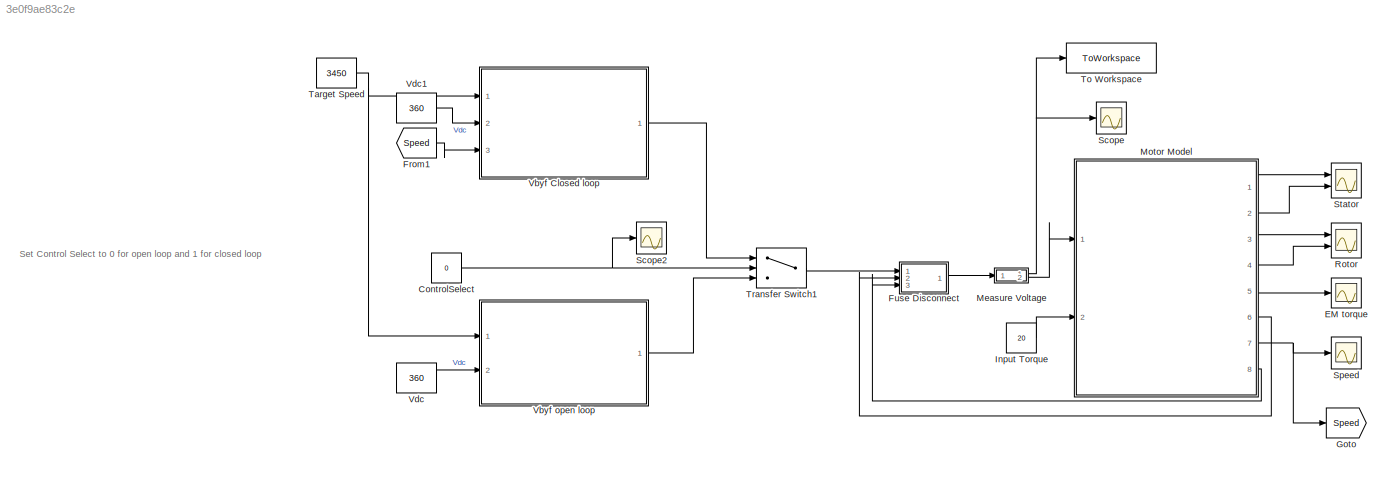
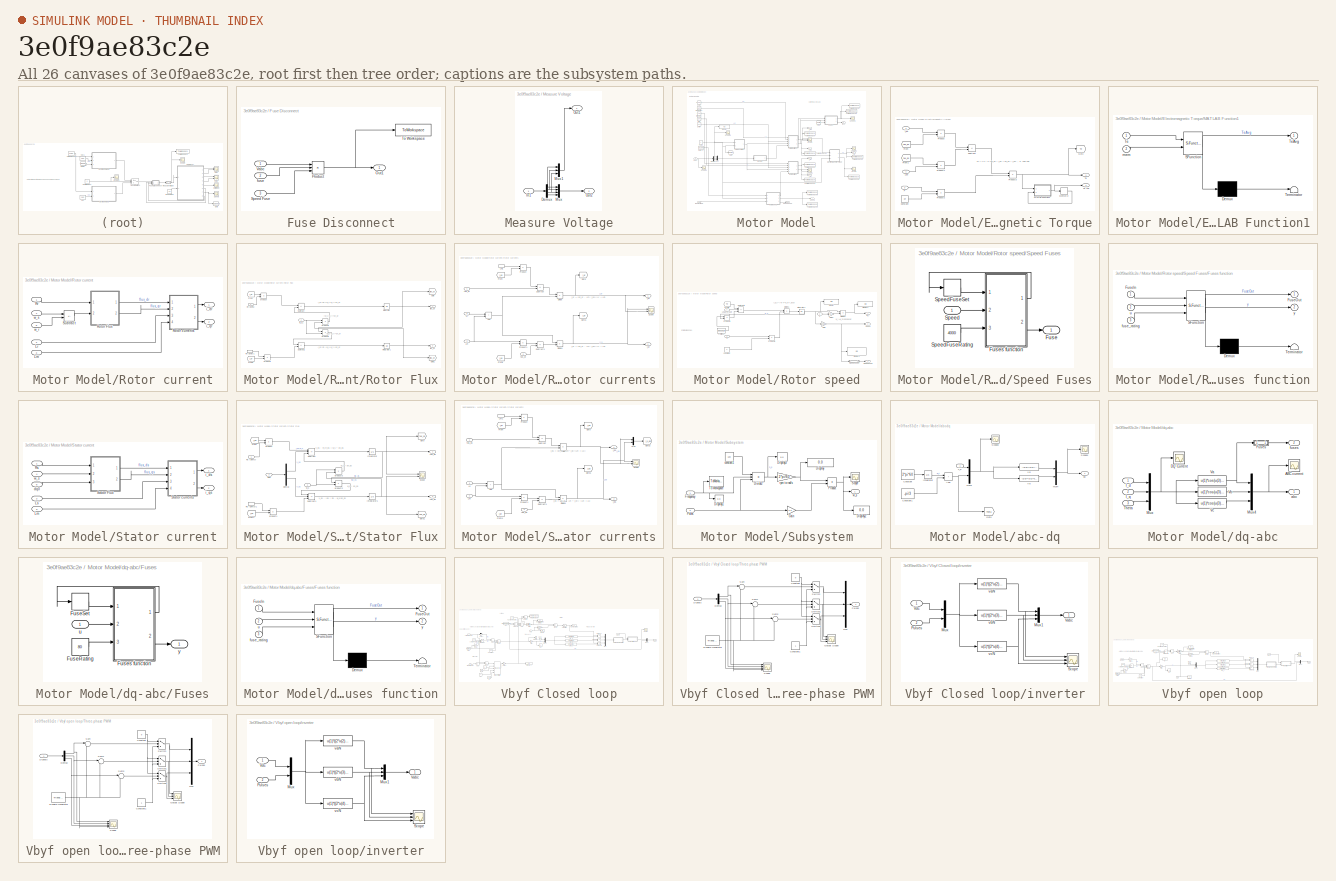
[diagram: thumbnail index - all 26 canvases of the model, root first then tree order]
MODEL slx_3e0f9ae83c2e
KIND model
CONFIG AbsTol = auto
CONFIG EnableMultiTasking = off
CONFIG FixedStep = 10e-6
CONFIG MaxStep = auto
CONFIG MinStep = auto
CONFIG RelTol = 1e-3
CONFIG SampleTimeConstraint = Unconstrained
CONFIG Solver = ode4
CONFIG SolverName = ode4
CONFIG StartTime = 0.0
CONFIG StopTime = 3
WORKSPACE source: mxarray member
WORKSPACE Fe = 60
WORKSPACE Poles = 2
WORKSPACE vectorMF = [0 9.80392156863e-05 0.000196078431373]
BLOCK [Constant] ControlSelect
  Value = 0
BLOCK [Scope] EM torque
  Floating = off
  NumInputPorts = 1
  Ports = [1]
  ScopeSpecificationString = Simulink.scopes.TimeScopeBlockCfg('CurrentConfiguration', extmgr.ConfigurationSet(extmgr.Configuration('Core','General UI',true),extmgr.Configuration('Core','Source UI',true),extmgr.Configuration('Sources','WiredSimulink',true,'DataLoggingVariableName','ScopeData1'),extmgr.Configuration('Visuals','Time Domain',true,'SerializedDisplays',{struct('MinYLimReal','-39.56838','MaxYLimReal','26.96567','YL...<+1448ch>
BLOCK [From] From1
  GotoTag = Speed
BLOCK [SubSystem] Fuse Disconnect
  Ports = [3, 1]
  RequestExecContextInheritance = off
BLOCK [Outport] Fuse Disconnect/Out1
BLOCK [Product] Fuse Disconnect/Product
  Inputs = 3
  Ports = [3, 1]
BLOCK [Inport] Fuse Disconnect/Speed Fuse
  Port = 3
BLOCK [ToWorkspace] Fuse Disconnect/To Workspace
  FixptAsFi = on
  MaxDataPoints = inf
  Ports = [1]
  SampleTime = -1
  Save2DSignal = 2-D array (concatenate along first dimension)
  VariableName = Fuse_Result
BLOCK [Inport] Fuse Disconnect/Vabc
BLOCK [Inport] Fuse Disconnect/fuse
  Port = 2
BLOCK [Goto] Goto
  GotoTag = Speed
BLOCK [Constant] Input Torque
  Value = 20
BLOCK [SubSystem] Measure Voltage
  Ports = [1, 2]
  RequestExecContextInheritance = off
BLOCK [Demux] Measure Voltage/Demux
  Ports = [1, 4]
BLOCK [Inport] Measure Voltage/In1
BLOCK [Mux] Measure Voltage/Mux
  DisplayOption = bar
  Ports = [4, 1]
BLOCK [Mux] Measure Voltage/Mux1
  DisplayOption = bar
  Inputs = 3
  Ports = [3, 1]
BLOCK [Outport] Measure Voltage/Out1
BLOCK [Outport] Measure Voltage/Out2
  Port = 2
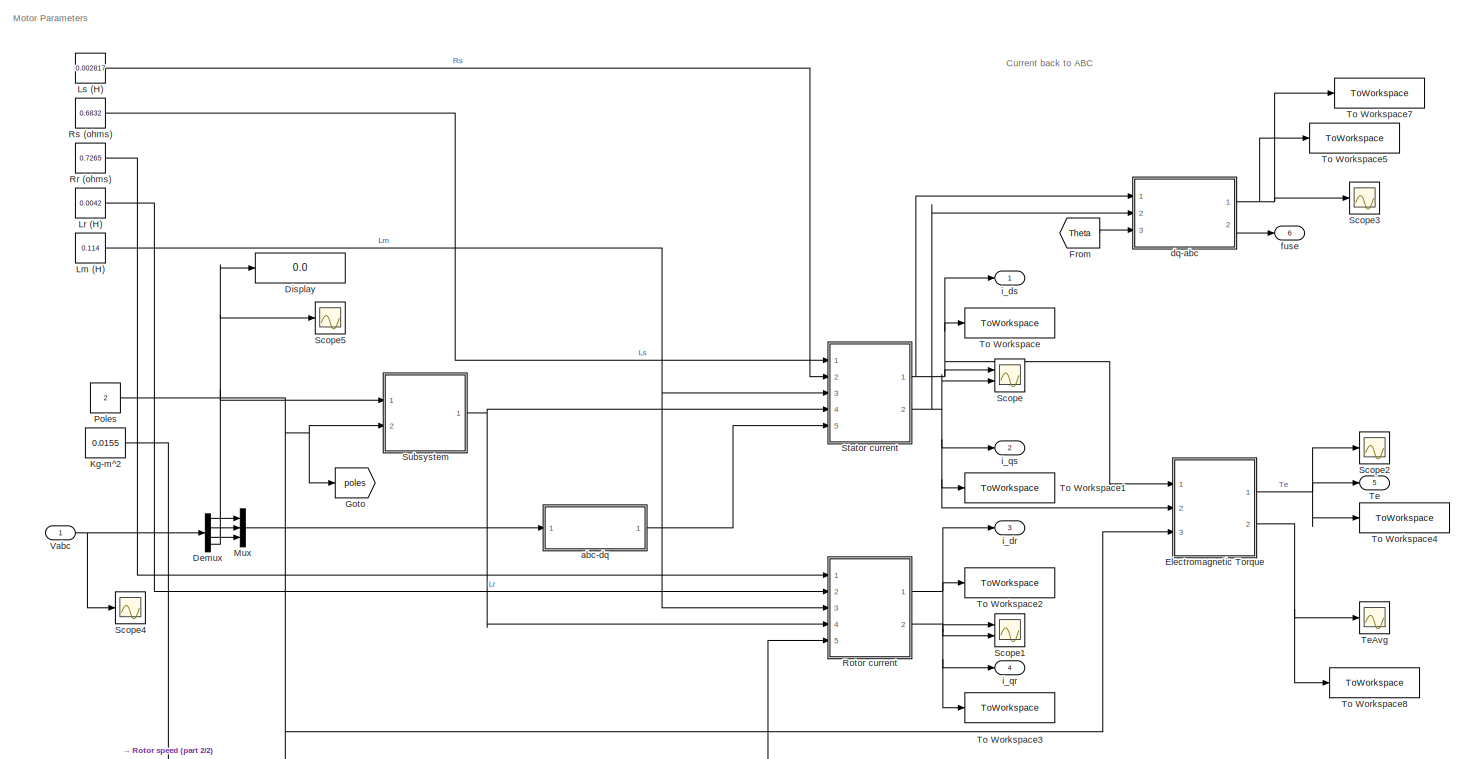
[diagram: Motor Model - part 1/2, most of the canvas]
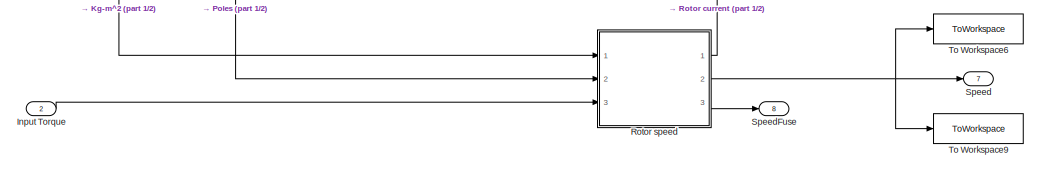
[diagram: Motor Model - part 2/2, bottom center region]
BLOCK [SubSystem] Motor Model
  Ports = [2, 8]
  RequestExecContextInheritance = off
BLOCK [Demux] Motor Model/Demux
  Ports = [1, 4]
BLOCK [Display] Motor Model/Display
  Decimation = 1
  Ports = [1]
BLOCK [SubSystem] Motor Model/Electromagnetic Torque
  Ports = [3, 2]
  RequestExecContextInheritance = off
BLOCK [Constant] Motor Model/Electromagnetic Torque/Constant
  Value = 3/4
BLOCK [From] Motor Model/Electromagnetic Torque/From
  GotoTag = flux_ds
  TagVisibility = global
BLOCK [From] Motor Model/Electromagnetic Torque/From1
  GotoTag = flux_qs
  TagVisibility = global
BLOCK [Goto] Motor Model/Electromagnetic Torque/Goto
  GotoTag = Te
  TagVisibility = global
BLOCK [SubSystem] Motor Model/Electromagnetic Torque/MATLAB Function1
  ErrorFcn = Stateflow.Translate.translate
  PermitHierarchicalResolution = ExplicitOnly
  Ports = [2, 1]
  RequestExecContextInheritance = off
  SFBlockType = MATLAB Function
  TreatAsAtomicUnit = on
BLOCK [Demux] Motor Model/Electromagnetic Torque/MATLAB Function1/ Demux 
  Outputs = 1
  Ports = [1, 1]
BLOCK [S-Function] Motor Model/Electromagnetic Torque/MATLAB Function1/ SFunction 
  EnableBusSupport = on
  FunctionName = sf_sfun
  PortCounts = [2 2]
  Ports = [2, 2]
  SFcnIsStateOwnerBlock = off
  SFunctionDeploymentMode = off
  Tag = Stateflow S-Function 6
BLOCK [Terminator] Motor Model/Electromagnetic Torque/MATLAB Function1/ Terminator 
BLOCK [Inport] Motor Model/Electromagnetic Torque/MATLAB Function1/Te
BLOCK [Outport] Motor Model/Electromagnetic Torque/MATLAB Function1/TeAvg
BLOCK [Inport] Motor Model/Electromagnetic Torque/MATLAB Function1/mem
  Port = 2
BLOCK [Memory] Motor Model/Electromagnetic Torque/Memory2
BLOCK [Inport] Motor Model/Electromagnetic Torque/P
  Port = 3
BLOCK [Product] Motor Model/Electromagnetic Torque/Product
  Ports = [2, 1]
BLOCK [Product] Motor Model/Electromagnetic Torque/Product1
  Ports = [2, 1]
BLOCK [Product] Motor Model/Electromagnetic Torque/Product2
  Ports = [2, 1]
BLOCK [Product] Motor Model/Electromagnetic Torque/Product3
  Ports = [2, 1]
BLOCK [Sum] Motor Model/Electromagnetic Torque/Subtract
  IconShape = rectangular
  Inputs = +-
  Ports = [2, 1]
BLOCK [Outport] Motor Model/Electromagnetic Torque/Te
  VectorParamsAs1DForOutWhenUnconnected = off
BLOCK [Outport] Motor Model/Electromagnetic Torque/Te Avg
  Port = 2
  VectorParamsAs1DForOutWhenUnconnected = off
BLOCK [Inport] Motor Model/Electromagnetic Torque/i_ds
BLOCK [Inport] Motor Model/Electromagnetic Torque/i_qs
  Port = 2
BLOCK [From] Motor Model/From
  GotoTag = Theta
  TagVisibility = global
BLOCK [Goto] Motor Model/Goto
  GotoTag = poles
  TagVisibility = global
BLOCK [Inport] Motor Model/Input Torque
  Port = 2
BLOCK [Constant] Motor Model/Kg-m^2
  Value = 0.0155
BLOCK [Constant] Motor Model/Lm (H)
  Value = 0.114
BLOCK [Constant] Motor Model/Lr (H)
  Value = 0.0042
BLOCK [Constant] Motor Model/Ls (H)
  Value = 0.002817
BLOCK [Mux] Motor Model/Mux
  DisplayOption = bar
  Inputs = 3
  Ports = [3, 1]
BLOCK [Constant] Motor Model/Poles
  Value = 2
BLOCK [SubSystem] Motor Model/Rotor current
  Ports = [5, 2]
  RequestExecContextInheritance = off
BLOCK [Inport] Motor Model/Rotor current/Lm
  Port = 3
BLOCK [Inport] Motor Model/Rotor current/Lr
  Port = 2
BLOCK [SubSystem] Motor Model/Rotor current/Rotor Flux
  Ports = [2, 2]
  RequestExecContextInheritance = off
BLOCK [From] Motor Model/Rotor current/Rotor Flux/From
  GotoTag = i_dr
  TagVisibility = global
BLOCK [From] Motor Model/Rotor current/Rotor Flux/From1
  GotoTag = i_qr
  TagVisibility = global
BLOCK [Goto] Motor Model/Rotor current/Rotor Flux/Goto
  GotoTag = flux_dr
  TagVisibility = global
BLOCK [Goto] Motor Model/Rotor current/Rotor Flux/Goto1
  GotoTag = flux_qr
  TagVisibility = global
BLOCK [Integrator] Motor Model/Rotor current/Rotor Flux/Integrator
  Ports = [1, 1]
BLOCK [Integrator] Motor Model/Rotor current/Rotor Flux/Integrator1
  Ports = [1, 1]
BLOCK [Inport] Motor Model/Rotor current/Rotor Flux/Rr (Ohms)
BLOCK [InportShadow] Motor Model/Rotor current/Rotor Flux/Rr (Ohms)1
BLOCK [Sum] Motor Model/Rotor current/Rotor Flux/Subtract
  IconShape = rectangular
  Inputs = -+
  Ports = [2, 1]
BLOCK [Sum] Motor Model/Rotor current/Rotor Flux/Subtract1
  IconShape = rectangular
  Inputs = --
  Ports = [2, 1]
BLOCK [Outport] Motor Model/Rotor current/Rotor Flux/flux_dr
  VectorParamsAs1DForOutWhenUnconnected = off
BLOCK [Outport] Motor Model/Rotor current/Rotor Flux/flux_qr
  Port = 2
  VectorParamsAs1DForOutWhenUnconnected = off
BLOCK [Product] Motor Model/Rotor current/Rotor Flux/product
  Inputs = **
  Ports = [2, 1]
BLOCK [Product] Motor Model/Rotor current/Rotor Flux/product1
  Inputs = **
  Ports = [2, 1]
BLOCK [Product] Motor Model/Rotor current/Rotor Flux/product2
  Inputs = **
  Ports = [2, 1]
BLOCK [Product] Motor Model/Rotor current/Rotor Flux/product3
  Inputs = **
  Ports = [2, 1]
BLOCK [Inport] Motor Model/Rotor current/Rotor Flux/w_s1
  Port = 2
BLOCK [SubSystem] Motor Model/Rotor current/Rotor currents
  Ports = [4, 2]
  RequestExecContextInheritance = off
BLOCK [Sum] Motor Model/Rotor current/Rotor currents/Add
  IconShape = rectangular
  Ports = [2, 1]
BLOCK [Product] Motor Model/Rotor current/Rotor currents/Divide
  Inputs = */
  Ports = [2, 1]
BLOCK [Product] Motor Model/Rotor current/Rotor currents/Divide1
  Inputs = /*
  Ports = [2, 1]
BLOCK [From] Motor Model/Rotor current/Rotor currents/From
  GotoTag = i_ds
  TagVisibility = global
BLOCK [From] Motor Model/Rotor current/Rotor currents/From1
  GotoTag = i_qs
  TagVisibility = global
BLOCK [Goto] Motor Model/Rotor current/Rotor currents/Goto
  GotoTag = i_dr
  TagVisibility = global
BLOCK [Goto] Motor Model/Rotor current/Rotor currents/Goto1
  GotoTag = i_qr
  TagVisibility = global
BLOCK [Inport] Motor Model/Rotor current/Rotor currents/Lm
  Port = 4
BLOCK [InportShadow] Motor Model/Rotor current/Rotor currents/Lm1
  Port = 4
BLOCK [Inport] Motor Model/Rotor current/Rotor currents/Lr
  Port = 3
BLOCK [Product] Motor Model/Rotor current/Rotor currents/Product
  Ports = [2, 1]
BLOCK [Product] Motor Model/Rotor current/Rotor currents/Product1
  Ports = [2, 1]
BLOCK [Scope] Motor Model/Rotor current/Rotor currents/Scope
  Floating = off
  NumInputPorts = 2
  Ports = [2]
  ScopeSpecificationString = Simulink.scopes.TimeScopeBlockCfg('CurrentConfiguration', extmgr.ConfigurationSet(extmgr.Configuration('Core','General UI',true),extmgr.Configuration('Core','Source UI',true),extmgr.Configuration('Sources','WiredSimulink',true,'DataLoggingVariableName','ScopeData1'),extmgr.Configuration('Visuals','Time Domain',true,'SerializedDisplays',{struct('MinYLimReal','-381.16693','MaxYLimReal','372.37731','...<+1415ch>
BLOCK [Sum] Motor Model/Rotor current/Rotor currents/Subtract
  IconShape = rectangular
  Inputs = -+
  Ports = [2, 1]
BLOCK [Sum] Motor Model/Rotor current/Rotor currents/Subtract1
  IconShape = rectangular
  Inputs = -+
  Ports = [2, 1]
BLOCK [Inport] Motor Model/Rotor current/Rotor currents/flus_qr
  Port = 2
BLOCK [Inport] Motor Model/Rotor current/Rotor currents/flux_dr
BLOCK [Outport] Motor Model/Rotor current/Rotor currents/i_dr
  VectorParamsAs1DForOutWhenUnconnected = off
BLOCK [Outport] Motor Model/Rotor current/Rotor currents/i_qr
  Port = 2
  VectorParamsAs1DForOutWhenUnconnected = off
BLOCK [Inport] Motor Model/Rotor current/Rr
BLOCK [Sum] Motor Model/Rotor current/Subtract
  IconShape = rectangular
  Inputs = +-
  Ports = [2, 1]
BLOCK [Outport] Motor Model/Rotor current/i_dr
  VectorParamsAs1DForOutWhenUnconnected = off
BLOCK [Outport] Motor Model/Rotor current/i_qr
  Port = 2
  VectorParamsAs1DForOutWhenUnconnected = off
BLOCK [Inport] Motor Model/Rotor current/w_r
  Port = 5
BLOCK [Inport] Motor Model/Rotor current/w_s
  Port = 4
BLOCK [SubSystem] Motor Model/Rotor speed
  Ports = [3, 3]
  RequestExecContextInheritance = off
BLOCK [Display] Motor Model/Rotor speed/Display
  Decimation = 1
  Ports = [1]
BLOCK [Display] Motor Model/Rotor speed/Display1
  Decimation = 1
  Ports = [1]
BLOCK [Display] Motor Model/Rotor speed/Display2
  Decimation = 1
  Ports = [1]
BLOCK [Product] Motor Model/Rotor speed/Divide1
  Inputs = */
  Ports = [2, 1]
BLOCK [Product] Motor Model/Rotor speed/Divide2
  Inputs = **
  Ports = [2, 1]
BLOCK [Constant] Motor Model/Rotor speed/Friction1
  Value = 0.00281/5
BLOCK [From] Motor Model/Rotor speed/From1
  GotoTag = Te
  TagVisibility = global
BLOCK [Gain] Motor Model/Rotor speed/Gain
  Gain = 60/2/pi
BLOCK [Gain] Motor Model/Rotor speed/Gain1
  Gain = 0.5
BLOCK [Integrator] Motor Model/Rotor speed/Integrator1
  Ports = [1, 1]
BLOCK [Inport] Motor Model/Rotor speed/J
BLOCK [Inport] Motor Model/Rotor speed/Load Torque
  Port = 3
BLOCK [Inport] Motor Model/Rotor speed/P
  Port = 2
BLOCK [Product] Motor Model/Rotor speed/Product1
  Ports = [2, 1]
BLOCK [Product] Motor Model/Rotor speed/Product3
  Ports = [2, 1]
BLOCK [Outport] Motor Model/Rotor speed/Speed
  Port = 2
  VectorParamsAs1DForOutWhenUnconnected = off
BLOCK [SubSystem] Motor Model/Rotor speed/Speed Fuses
  Ports = [1, 1]
  RequestExecContextInheritance = off
BLOCK [Outport] Motor Model/Rotor speed/Speed Fuses/Fuse
BLOCK [SubSystem] Motor Model/Rotor speed/Speed Fuses/Fuses function
  ErrorFcn = Stateflow.Translate.translate
  PermitHierarchicalResolution = ExplicitOnly
  Ports = [3, 2]
  RequestExecContextInheritance = off
  SFBlockType = MATLAB Function
  TreatAsAtomicUnit = on
BLOCK [Demux] Motor Model/Rotor speed/Speed Fuses/Fuses function/ Demux 
  Outputs = 1
  Ports = [1, 1]
BLOCK [S-Function] Motor Model/Rotor speed/Speed Fuses/Fuses function/ SFunction 
  EnableBusSupport = on
  FunctionName = sf_sfun
  PortCounts = [3 3]
  Ports = [3, 3]
  SFcnIsStateOwnerBlock = off
  SFunctionDeploymentMode = off
  Tag = Stateflow S-Function 4
BLOCK [Terminator] Motor Model/Rotor speed/Speed Fuses/Fuses function/ Terminator 
BLOCK [Inport] Motor Model/Rotor speed/Speed Fuses/Fuses function/FuseIn
BLOCK [Outport] Motor Model/Rotor speed/Speed Fuses/Fuses function/FuseOut
BLOCK [Inport] Motor Model/Rotor speed/Speed Fuses/Fuses function/fuse_rating
  Port = 3
BLOCK [Inport] Motor Model/Rotor speed/Speed Fuses/Fuses function/u
  Port = 2
BLOCK [Outport] Motor Model/Rotor speed/Speed Fuses/Fuses function/y
  Port = 2
BLOCK [Inport] Motor Model/Rotor speed/Speed Fuses/Speed
BLOCK [Constant] Motor Model/Rotor speed/Speed Fuses/SpeedFuseRating
  Value = 4000
BLOCK [Memory] Motor Model/Rotor speed/Speed Fuses/SpeedFuseSet
  InitialCondition = 1
BLOCK [Outport] Motor Model/Rotor speed/SpeedFuse
  Port = 3
  VectorParamsAs1DForOutWhenUnconnected = off
BLOCK [Sum] Motor Model/Rotor speed/Subtract2
  IconShape = rectangular
  Inputs = +--
  Ports = [3, 1]
BLOCK [Constant] Motor Model/Rotor speed/constant
  Value = 2
BLOCK [Outport] Motor Model/Rotor speed/w_r
  VectorParamsAs1DForOutWhenUnconnected = off
BLOCK [Constant] Motor Model/Rr (ohms)
  Value = 0.7265
BLOCK [Constant] Motor Model/Rs (ohms)
  Value = 0.6832
BLOCK [Scope] Motor Model/Scope
  Floating = off
  NumInputPorts = 2
  Ports = [2]
  ScopeSpecificationString = Simulink.scopes.TimeScopeBlockCfg('CurrentConfiguration', extmgr.ConfigurationSet(extmgr.Configuration('Core','General UI',true),extmgr.Configuration('Core','Source UI',true),extmgr.Configuration('Sources','WiredSimulink',true,'DataLoggingVariableName','ScopeData1'),extmgr.Configuration('Visuals','Time Domain',true,'SerializedDisplays',{struct('MinYLimReal','-168.53955','MaxYLimReal','93.39803','Y...<+1511ch>
BLOCK [Scope] Motor Model/Scope1
  Floating = off
  NumInputPorts = 2
  Ports = [2]
  ScopeSpecificationString = Simulink.scopes.TimeScopeBlockCfg('CurrentConfiguration', extmgr.ConfigurationSet(extmgr.Configuration('Core','General UI',true),extmgr.Configuration('Core','Source UI',true),extmgr.Configuration('Sources','WiredSimulink',true,'DataLoggingVariableName','ScopeData2'),extmgr.Configuration('Visuals','Time Domain',true,'SerializedDisplays',{struct('MinYLimReal','-56.82872','MaxYLimReal','25.94685','YL...<+1464ch>
BLOCK [Scope] Motor Model/Scope2
  Floating = off
  NumInputPorts = 1
  Ports = [1]
  ScopeSpecificationString = Simulink.scopes.TimeScopeBlockCfg('CurrentConfiguration', extmgr.ConfigurationSet(extmgr.Configuration('Core','General UI',true),extmgr.Configuration('Core','Source UI',true),extmgr.Configuration('Sources','WiredSimulink',true,'DataLoggingVariableName','ScopeData3'),extmgr.Configuration('Visuals','Time Domain',true,'SerializedDisplays',{struct('MinYLimReal','-0.21589','MaxYLimReal','2.20037','YLab...<+1459ch>
BLOCK [Scope] Motor Model/Scope3
  Floating = off
  NumInputPorts = 1
  Ports = [1]
  ScopeSpecificationString = Simulink.scopes.TimeScopeBlockCfg('CurrentConfiguration', extmgr.ConfigurationSet(extmgr.Configuration('Core','General UI',true),extmgr.Configuration('Core','Source UI',true),extmgr.Configuration('Sources','WiredSimulink',true,'DataLoggingVariableName','ScopeData2'),extmgr.Configuration('Visuals','Time Domain',true,'SerializedDisplays',{struct('MinYLimReal','-9.63928','MaxYLimReal','9.12119','YLab...<+1534ch>
BLOCK [Scope] Motor Model/Scope4
  Floating = off
  NumInputPorts = 1
  Ports = [1]
  ScopeSpecificationString = Simulink.scopes.TimeScopeBlockCfg('CurrentConfiguration', extmgr.ConfigurationSet(extmgr.Configuration('Core','General UI',true),extmgr.Configuration('Core','Source UI',true),extmgr.Configuration('Sources','WiredSimulink',true,'DataLoggingVariableName','ScopeData1'),extmgr.Configuration('Visuals','Time Domain',true,'SerializedDisplays',{struct('MinYLimReal','-367.69553','MaxYLimReal','367.69553','...<+1454ch>
BLOCK [Scope] Motor Model/Scope5
  Floating = off
  NumInputPorts = 1
  Ports = [1]
  ScopeSpecificationString = Simulink.scopes.TimeScopeBlockCfg('CurrentConfiguration', extmgr.ConfigurationSet(extmgr.Configuration('Core','General UI',true),extmgr.Configuration('Core','Source UI',true),extmgr.Configuration('Sources','WiredSimulink',true,'DataLoggingVariableName','ScopeData3'),extmgr.Configuration('Visuals','Time Domain',true,'SerializedDisplays',{struct('MinYLimReal','46.98083','MaxYLimReal','56.78765','YLa...<+1416ch>
BLOCK [Outport] Motor Model/Speed
  Port = 7
BLOCK [Outport] Motor Model/SpeedFuse
  Port = 8
BLOCK [SubSystem] Motor Model/Stator current
  Ports = [5, 2]
  RequestExecContextInheritance = off
BLOCK [Inport] Motor Model/Stator current/Lm
  Port = 3
BLOCK [Inport] Motor Model/Stator current/Ls
  Port = 2
BLOCK [Inport] Motor Model/Stator current/Rs
BLOCK [SubSystem] Motor Model/Stator current/Stator Flux
  Ports = [3, 2]
  RequestExecContextInheritance = off
BLOCK [Demux] Motor Model/Stator current/Stator Flux/Demux
  Outputs = 2
  Ports = [1, 2]
BLOCK [From] Motor Model/Stator current/Stator Flux/From
  GotoTag = i_ds
  TagVisibility = global
BLOCK [From] Motor Model/Stator current/Stator Flux/From1
  GotoTag = i_qs
  TagVisibility = global
BLOCK [Goto] Motor Model/Stator current/Stator Flux/Goto
  GotoTag = flux_ds
  TagVisibility = global
BLOCK [Goto] Motor Model/Stator current/Stator Flux/Goto1
  GotoTag = flux_qs
  TagVisibility = global
BLOCK [Integrator] Motor Model/Stator current/Stator Flux/Integrator
  Ports = [1, 1]
BLOCK [Integrator] Motor Model/Stator current/Stator Flux/Integrator1
  Ports = [1, 1]
BLOCK [Inport] Motor Model/Stator current/Stator Flux/Rs (Ohms)
BLOCK [InportShadow] Motor Model/Stator current/Stator Flux/Rs (Ohms)1
BLOCK [Scope] Motor Model/Stator current/Stator Flux/Scope
  Floating = off
  NumInputPorts = 2
  Ports = [2]
  ScopeSpecificationString = Simulink.scopes.TimeScopeBlockCfg('CurrentConfiguration', extmgr.ConfigurationSet(extmgr.Configuration('Core','General UI',true),extmgr.Configuration('Core','Source UI',true),extmgr.Configuration('Sources','WiredSimulink',true,'DataLoggingVariableName','ScopeData2'),extmgr.Configuration('Visuals','Time Domain',true,'SerializedDisplays',{struct('MinYLimReal','-439.80147','MaxYLimReal','431.65029','...<+1459ch>
BLOCK [Sum] Motor Model/Stator current/Stator Flux/Subtract
  IconShape = rectangular
  Inputs = -++
  Ports = [3, 1]
BLOCK [Sum] Motor Model/Stator current/Stator Flux/Subtract1
  IconShape = rectangular
  Inputs = -+-
  Ports = [3, 1]
BLOCK [Inport] Motor Model/Stator current/Stator Flux/dq0
  Port = 3
BLOCK [Outport] Motor Model/Stator current/Stator Flux/flux_ds
  VectorParamsAs1DForOutWhenUnconnected = off
BLOCK [Outport] Motor Model/Stator current/Stator Flux/flux_qs
  Port = 2
  VectorParamsAs1DForOutWhenUnconnected = off
BLOCK [Product] Motor Model/Stator current/Stator Flux/product
  Inputs = **
  Ports = [2, 1]
BLOCK [Product] Motor Model/Stator current/Stator Flux/product1
  Inputs = **
  Ports = [2, 1]
BLOCK [Product] Motor Model/Stator current/Stator Flux/product2
  Inputs = **
  Ports = [2, 1]
BLOCK [Product] Motor Model/Stator current/Stator Flux/product3
  Inputs = **
  Ports = [2, 1]
BLOCK [Inport] Motor Model/Stator current/Stator Flux/w_s
  Port = 2
BLOCK [SubSystem] Motor Model/Stator current/Stator currents
  Ports = [4, 2]
  RequestExecContextInheritance = off
BLOCK [Sum] Motor Model/Stator current/Stator currents/Add
  IconShape = rectangular
  Ports = [2, 1]
BLOCK [Product] Motor Model/Stator current/Stator currents/Divide
  Inputs = */
  Ports = [2, 1]
BLOCK [Product] Motor Model/Stator current/Stator currents/Divide1
  Inputs = /*
  Ports = [2, 1]
BLOCK [From] Motor Model/Stator current/Stator currents/From
  GotoTag = i_dr
  TagVisibility = global
BLOCK [From] Motor Model/Stator current/Stator currents/From1
  GotoTag = i_qr
  TagVisibility = global
BLOCK [Goto] Motor Model/Stator current/Stator currents/Goto
  GotoTag = i_ds
  TagVisibility = global
BLOCK [Goto] Motor Model/Stator current/Stator currents/Goto1
  GotoTag = i_qs
  TagVisibility = global
BLOCK [Goto] Motor Model/Stator current/Stator currents/Goto2
  GotoTag = i_s_dq
  TagVisibility = global
BLOCK [Inport] Motor Model/Stator current/Stator currents/Lm
  Port = 4
BLOCK [InportShadow] Motor Model/Stator current/Stator currents/Lm1
  Port = 4
BLOCK [Inport] Motor Model/Stator current/Stator currents/Ls
  Port = 3
BLOCK [Mux] Motor Model/Stator current/Stator currents/Mux
  DisplayOption = bar
  Inputs = 2
  Ports = [2, 1]
BLOCK [Product] Motor Model/Stator current/Stator currents/Product
  Ports = [2, 1]
BLOCK [Product] Motor Model/Stator current/Stator currents/Product1
  Ports = [2, 1]
BLOCK [Scope] Motor Model/Stator current/Stator currents/Scope
  Floating = off
  NumInputPorts = 2
  Ports = [2]
  ScopeSpecificationString = Simulink.scopes.TimeScopeBlockCfg('CurrentConfiguration', extmgr.ConfigurationSet(extmgr.Configuration('Core','General UI',true),extmgr.Configuration('Core','Source UI',true),extmgr.Configuration('Sources','WiredSimulink',true,'DataLoggingVariableName','ScopeData1'),extmgr.Configuration('Visuals','Time Domain',true,'SerializedDisplays',{struct('MinYLimReal','-439.80147','MaxYLimReal','431.65029','...<+1428ch>
BLOCK [Sum] Motor Model/Stator current/Stator currents/Subtract
  IconShape = rectangular
  Inputs = -+
  Ports = [2, 1]
BLOCK [Sum] Motor Model/Stator current/Stator currents/Subtract1
  IconShape = rectangular
  Inputs = -+
  Ports = [2, 1]
BLOCK [Inport] Motor Model/Stator current/Stator currents/flus_ds
BLOCK [Inport] Motor Model/Stator current/Stator currents/flus_qs
  Port = 2
BLOCK [Outport] Motor Model/Stator current/Stator currents/i_ds
  VectorParamsAs1DForOutWhenUnconnected = off
BLOCK [Outport] Motor Model/Stator current/Stator currents/i_qs
  Port = 2
  VectorParamsAs1DForOutWhenUnconnected = off
BLOCK [Inport] Motor Model/Stator current/dq0
  Port = 5
BLOCK [Outport] Motor Model/Stator current/i_ds
  VectorParamsAs1DForOutWhenUnconnected = off
BLOCK [Outport] Motor Model/Stator current/i_qs
  Port = 2
  VectorParamsAs1DForOutWhenUnconnected = off
BLOCK [Inport] Motor Model/Stator current/w_s
  Port = 4
BLOCK [SubSystem] Motor Model/Subsystem
  Ports = [2, 1]
  RequestExecContextInheritance = off
BLOCK [Display] Motor Model/Subsystem/Display
  Decimation = 1
  Ports = [1]
BLOCK [Display] Motor Model/Subsystem/Display1
  Decimation = 1
  Ports = [1]
BLOCK [Display] Motor Model/Subsystem/Display2
  Decimation = 1
  Ports = [1]
BLOCK [Display] Motor Model/Subsystem/Display3
  Decimation = 1
  Ports = [1]
BLOCK [Product] Motor Model/Subsystem/Divide2
  Inputs = **/
  Ports = [3, 1]
BLOCK [Inport] Motor Model/Subsystem/Frequency
BLOCK [Gain] Motor Model/Subsystem/Gain
  Gain = 0.5
BLOCK [Inport] Motor Model/Subsystem/Poles
  Port = 2
BLOCK [Product] Motor Model/Subsystem/Product
  Ports = [2, 1]
BLOCK [Scope] Motor Model/Subsystem/Scope
  Floating = off
  NumInputPorts = 1
  Ports = [1]
  ScopeSpecificationString = Simulink.scopes.TimeScopeBlockCfg('CurrentConfiguration', extmgr.ConfigurationSet(extmgr.Configuration('Core','General UI',true),extmgr.Configuration('Core','Source UI',true),extmgr.Configuration('Sources','WiredSimulink',true,'DataLoggingVariableName','ScopeData1'),extmgr.Configuration('Visuals','Time Domain',true,'SerializedDisplays',{struct('MinYLimReal','352.69908','MaxYLimReal','353.81402','Y...<+1463ch>
BLOCK [ToWorkspace] Motor Model/Subsystem/To Workspace
  FixptAsFi = on
  MaxDataPoints = inf
  Ports = [1]
  SampleTime = -1
  VariableName = freqS
BLOCK [Constant] Motor Model/Subsystem/constant1
  Value = 120
BLOCK [Gain] Motor Model/Subsystem/rpm to rad//s
  Gain = 2*pi/60
BLOCK [Outport] Motor Model/Subsystem/w_s
  VectorParamsAs1DForOutWhenUnconnected = off
BLOCK [Outport] Motor Model/Te
  Port = 5
BLOCK [Scope] Motor Model/TeAvg
  Floating = off
  NumInputPorts = 1
  Ports = [1]
  ScopeSpecificationString = Simulink.scopes.TimeScopeBlockCfg('CurrentConfiguration', extmgr.ConfigurationSet(extmgr.Configuration('Core','General UI',true),extmgr.Configuration('Core','Source UI',true),extmgr.Configuration('Sources','WiredSimulink',true,'DataLoggingVariableName','ScopeData1'),extmgr.Configuration('Visuals','Time Domain',true,'SerializedDisplays',{struct('MinYLimReal','0.79105','MaxYLimReal','0.94864','YLabe...<+1486ch>
BLOCK [ToWorkspace] Motor Model/To Workspace
  FixptAsFi = on
  MaxDataPoints = inf
  Ports = [1]
  SampleTime = -1
  SaveFormat = Timeseries
  VariableName = i_ds_output
BLOCK [ToWorkspace] Motor Model/To Workspace1
  FixptAsFi = on
  MaxDataPoints = inf
  Ports = [1]
  SampleTime = -1
  SaveFormat = Timeseries
  VariableName = i_qs_output
BLOCK [ToWorkspace] Motor Model/To Workspace2
  FixptAsFi = on
  MaxDataPoints = inf
  Ports = [1]
  SampleTime = -1
  SaveFormat = Timeseries
  VariableName = i_dr_output
BLOCK [ToWorkspace] Motor Model/To Workspace3
  FixptAsFi = on
  MaxDataPoints = inf
  Ports = [1]
  SampleTime = -1
  SaveFormat = Timeseries
  VariableName = i_qr_output
BLOCK [ToWorkspace] Motor Model/To Workspace4
  FixptAsFi = on
  MaxDataPoints = inf
  Ports = [1]
  SampleTime = -1
  SaveFormat = Timeseries
  VariableName = TorqueOutput
BLOCK [ToWorkspace] Motor Model/To Workspace5
  FixptAsFi = on
  MaxDataPoints = inf
  Ports = [1]
  SampleTime = -1
  SaveFormat = Timeseries
  VariableName = CurrentInput
BLOCK [ToWorkspace] Motor Model/To Workspace6
  FixptAsFi = on
  MaxDataPoints = inf
  Ports = [1]
  SampleTime = -1
  SaveFormat = Timeseries
  VariableName = SpeedOutput
BLOCK [ToWorkspace] Motor Model/To Workspace7
  FixptAsFi = on
  MaxDataPoints = inf
  Ports = [1]
  SampleTime = -1
  Save2DSignal = 2-D array (concatenate along first dimension)
  VariableName = Current
BLOCK [ToWorkspace] Motor Model/To Workspace8
  FixptAsFi = on
  MaxDataPoints = inf
  Ports = [1]
  SampleTime = -1
  Save2DSignal = 2-D array (concatenate along first dimension)
  VariableName = torqueValues
BLOCK [ToWorkspace] Motor Model/To Workspace9
  FixptAsFi = on
  MaxDataPoints = inf
  Ports = [1]
  SampleTime = -1
  Save2DSignal = 2-D array (concatenate along first dimension)
  VariableName = SpeedValues
BLOCK [Inport] Motor Model/Vabc
BLOCK [SubSystem] Motor Model/abc-dq
  Ports = [1, 1]
  RequestExecContextInheritance = off
BLOCK [Sum] Motor Model/abc-dq/Add
  IconShape = rectangular
  Ports = [2, 1]
BLOCK [Constant] Motor Model/abc-dq/Constant
  Value = 2*pi*60
BLOCK [Constant] Motor Model/abc-dq/Constant1
  Value = -pi/3
BLOCK [Goto] Motor Model/abc-dq/Goto
  GotoTag = Theta
  TagVisibility = global
BLOCK [Integrator] Motor Model/abc-dq/Integrator
  Ports = [1, 1]
BLOCK [Mux] Motor Model/abc-dq/Mux3
  DisplayOption = bar
  Inputs = 2
  Ports = [2, 1]
BLOCK [Mux] Motor Model/abc-dq/Mux4
  DisplayOption = bar
  Inputs = 2
  Ports = [2, 1]
BLOCK [Scope] Motor Model/abc-dq/Scope2
  Floating = off
  NumInputPorts = 1
  Ports = [1]
  ScopeSpecificationString = Simulink.scopes.TimeScopeBlockCfg('CurrentConfiguration', extmgr.ConfigurationSet(extmgr.Configuration('Core','General UI',true),extmgr.Configuration('Core','Source UI',true),extmgr.Configuration('Sources','WiredSimulink',true,'DataLoggingVariableName','ScopeData1'),extmgr.Configuration('Visuals','Time Domain',true,'SerializedDisplays',{struct('MinYLimReal','-442.48871','MaxYLimReal','582.39841','...<+1446ch>
BLOCK [Scope] Motor Model/abc-dq/Scope3
  Floating = off
  NumInputPorts = 1
  Ports = [1]
  ScopeSpecificationString = Simulink.scopes.TimeScopeBlockCfg('CurrentConfiguration', extmgr.ConfigurationSet(extmgr.Configuration('Core','General UI',true),extmgr.Configuration('Core','Source UI',true),extmgr.Configuration('Sources','WiredSimulink',true,'DataLoggingVariableName','ScopeData1'),extmgr.Configuration('Visuals','Time Domain',true,'SerializedDisplays',{struct('MinYLimReal','-279.31051','MaxYLimReal','431.72834','...<+1452ch>
BLOCK [Fcn] Motor Model/abc-dq/Vd
  Expr = -(2/3)*(u(1)*cos(u(4))+u(2)*cos(u(4)-2*pi/3)+u(3)*cos(u(4)+2*pi/3))
BLOCK [Fcn] Motor Model/abc-dq/Vq
  Expr = (2/3)*(u(1)*sin(u(4))+u(2)*sin(u(4)-2*pi/3)+u(3)*sin(u(4)+2*pi/3))
BLOCK [Outport] Motor Model/abc-dq/dq
  VectorParamsAs1DForOutWhenUnconnected = off
BLOCK [Inport] Motor Model/abc-dq/v_a
BLOCK [SubSystem] Motor Model/dq-abc
  Ports = [3, 2]
  RequestExecContextInheritance = off
BLOCK [Scope] Motor Model/dq-abc/ABC current
  Floating = off
  NumInputPorts = 1
  Ports = [1]
  ScopeSpecificationString = Simulink.scopes.TimeScopeBlockCfg('CurrentConfiguration', extmgr.ConfigurationSet(extmgr.Configuration('Core','General UI',true),extmgr.Configuration('Core','Source UI',true),extmgr.Configuration('Sources','WiredSimulink',true,'DataLoggingVariableName','ScopeData1'),extmgr.Configuration('Visuals','Time Domain',true,'SerializedDisplays',{struct('MinYLimReal','-255.28548','MaxYLimReal','253.62354','...<+1483ch>
BLOCK [Scope] Motor Model/dq-abc/DQ Current
  Floating = off
  NumInputPorts = 1
  Ports = [1]
  ScopeSpecificationString = Simulink.scopes.TimeScopeBlockCfg('CurrentConfiguration', extmgr.ConfigurationSet(extmgr.Configuration('Core','General UI',true),extmgr.Configuration('Core','Source UI',true),extmgr.Configuration('Sources','WiredSimulink',true,'DataLoggingVariableName','ScopeData1'),extmgr.Configuration('Visuals','Time Domain',true,'SerializedDisplays',{struct('MinYLimReal','-442.48871','MaxYLimReal','582.39841','...<+1436ch>
BLOCK [SubSystem] Motor Model/dq-abc/Fuses
  Ports = [1, 1]
  RequestExecContextInheritance = off
BLOCK [Constant] Motor Model/dq-abc/Fuses/FuseRating
  Value = 80
BLOCK [Memory] Motor Model/dq-abc/Fuses/FuseSet
  InitialCondition = 1
BLOCK [SubSystem] Motor Model/dq-abc/Fuses/Fuses function
  ErrorFcn = Stateflow.Translate.translate
  PermitHierarchicalResolution = ExplicitOnly
  Ports = [3, 2]
  RequestExecContextInheritance = off
  SFBlockType = MATLAB Function
  TreatAsAtomicUnit = on
BLOCK [Demux] Motor Model/dq-abc/Fuses/Fuses function/ Demux 
  Outputs = 1
  Ports = [1, 1]
BLOCK [S-Function] Motor Model/dq-abc/Fuses/Fuses function/ SFunction 
  EnableBusSupport = on
  FunctionName = sf_sfun
  PortCounts = [3 3]
  Ports = [3, 3]
  SFcnIsStateOwnerBlock = off
  SFunctionDeploymentMode = off
  Tag = Stateflow S-Function 2
BLOCK [Terminator] Motor Model/dq-abc/Fuses/Fuses function/ Terminator 
BLOCK [Inport] Motor Model/dq-abc/Fuses/Fuses function/FuseIn
BLOCK [Outport] Motor Model/dq-abc/Fuses/Fuses function/FuseOut
BLOCK [Inport] Motor Model/dq-abc/Fuses/Fuses function/fuse_rating
  Port = 3
BLOCK [Inport] Motor Model/dq-abc/Fuses/Fuses function/u
  Port = 2
BLOCK [Outport] Motor Model/dq-abc/Fuses/Fuses function/y
  Port = 2
BLOCK [Inport] Motor Model/dq-abc/Fuses/u
BLOCK [Outport] Motor Model/dq-abc/Fuses/y
BLOCK [Inport] Motor Model/dq-abc/I_d
BLOCK [Inport] Motor Model/dq-abc/I_q
  Port = 2
BLOCK [Mux] Motor Model/dq-abc/Mux
  DisplayOption = bar
  Inputs = 3
  Ports = [3, 1]
BLOCK [Mux] Motor Model/dq-abc/Mux4
  DisplayOption = bar
  Inputs = 3
  Ports = [3, 1]
BLOCK [Inport] Motor Model/dq-abc/Theta
  Port = 3
BLOCK [Fcn] Motor Model/dq-abc/Va
  Expr = u(1)*cos(u(3))-u(2)*sin(u(3))
BLOCK [Fcn] Motor Model/dq-abc/Vb
  Expr = u(1)*cos(u(3)-2*pi/3)-u(2)*sin(u(3)-2*pi/3)
BLOCK [Fcn] Motor Model/dq-abc/Vc
  Expr = u(1)*cos(u(3)+2*pi/3)-u(2)*sin(u(3)+2*pi/3)
BLOCK [Outport] Motor Model/dq-abc/abc
  VectorParamsAs1DForOutWhenUnconnected = off
BLOCK [Outport] Motor Model/dq-abc/fuses
  Port = 2
  VectorParamsAs1DForOutWhenUnconnected = off
BLOCK [Outport] Motor Model/fuse
  Port = 6
BLOCK [Outport] Motor Model/i_dr
  Port = 3
BLOCK [Outport] Motor Model/i_ds
BLOCK [Outport] Motor Model/i_qr
  Port = 4
BLOCK [Outport] Motor Model/i_qs
  Port = 2
BLOCK [Scope] Rotor
  Floating = off
  NumInputPorts = 2
  Ports = [2]
  ScopeSpecificationString = Simulink.scopes.TimeScopeBlockCfg('CurrentConfiguration', extmgr.ConfigurationSet(extmgr.Configuration('Core','General UI',true),extmgr.Configuration('Core','Source UI',true),extmgr.Configuration('Sources','WiredSimulink',true,'DataLoggingVariableName','ScopeData2'),extmgr.Configuration('Visuals','Time Domain',true,'SerializedDisplays',{struct('MinYLimReal','-102.24985','MaxYLimReal','49.11965','Y...<+1475ch>
BLOCK [Scope] Scope
  Floating = off
  NumInputPorts = 1
  Ports = [1]
  ScopeSpecificationString = Simulink.scopes.TimeScopeBlockCfg('CurrentConfiguration', extmgr.ConfigurationSet(extmgr.Configuration('Core','General UI',true),extmgr.Configuration('Core','Source UI',true),extmgr.Configuration('Sources','WiredSimulink',true,'DataLoggingVariableName','ScopeData1'),extmgr.Configuration('Visuals','Time Domain',true,'SerializedDisplays',{struct('MinYLimReal','-262.11735','MaxYLimReal','255.9949','Y...<+1507ch>
BLOCK [Scope] Scope2
  Floating = off
  NumInputPorts = 1
  Ports = [1]
  ScopeSpecificationString = Simulink.scopes.TimeScopeBlockCfg('CurrentConfiguration', extmgr.ConfigurationSet(extmgr.Configuration('Core','General UI',true),extmgr.Configuration('Core','Source UI',true),extmgr.Configuration('Sources','WiredSimulink',true,'DataLoggingVariableName','ScopeData1'),extmgr.Configuration('Visuals','Time Domain',true,'SerializedDisplays',{struct('MinYLimReal','-300.00000','MaxYLimReal','300.00000','...<+1496ch>
BLOCK [Scope] Speed
  Floating = off
  NumInputPorts = 1
  Ports = [1]
  ScopeSpecificationString = Simulink.scopes.TimeScopeBlockCfg('CurrentConfiguration', extmgr.ConfigurationSet(extmgr.Configuration('Core','General UI',true),extmgr.Configuration('Core','Source UI',true),extmgr.Configuration('Sources','WiredSimulink',true,'DataLoggingVariableName','ScopeData1'),extmgr.Configuration('Visuals','Time Domain',true,'SerializedDisplays',{struct('MinYLimReal','-8659.75459','MaxYLimReal','965.03241',...<+1463ch>
BLOCK [Scope] Stator
  Floating = off
  NumInputPorts = 2
  Ports = [2]
  ScopeSpecificationString = Simulink.scopes.TimeScopeBlockCfg('CurrentConfiguration', extmgr.ConfigurationSet(extmgr.Configuration('Core','General UI',true),extmgr.Configuration('Core','Source UI',true),extmgr.Configuration('Sources','WiredSimulink',true,'DataLoggingVariableName','ScopeData4'),extmgr.Configuration('Visuals','Time Domain',true,'SerializedDisplays',{struct('MinYLimReal','-87.71249','MaxYLimReal','95.98177','YL...<+1514ch>
BLOCK [Constant] Target Speed
  Value = 3450
BLOCK [ToWorkspace] To Workspace
  FixptAsFi = on
  MaxDataPoints = inf
  Ports = [1]
  SampleTime = -1
  SaveFormat = Timeseries
  VariableName = VoltageInput
BLOCK [Switch] Transfer Switch1
  Criteria = u2 > Threshold
  InputSameDT = off
  SaturateOnIntegerOverflow = off
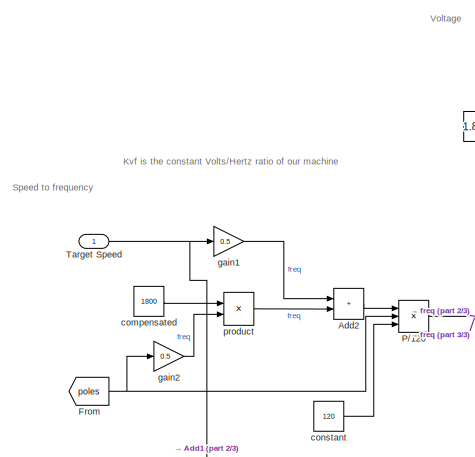
[diagram: Vbyf Closed loop - part 1/3, top left region]
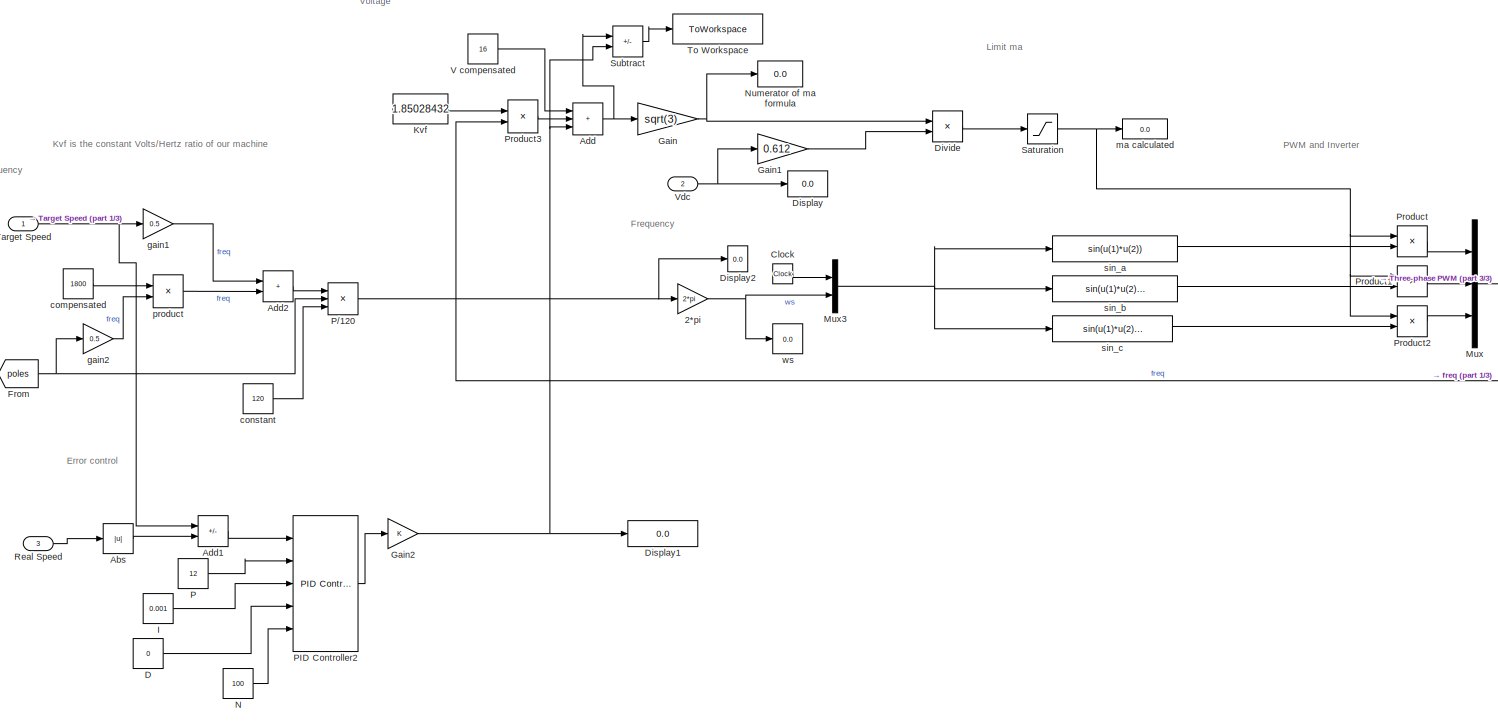
[diagram: Vbyf Closed loop - part 2/3, center side, full height]
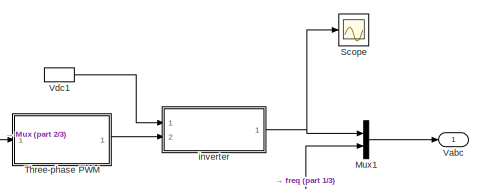
[diagram: Vbyf Closed loop - part 3/3, middle right region]
BLOCK [SubSystem] Vbyf Closed loop
  Ports = [3, 1]
  RequestExecContextInheritance = off
BLOCK [Constant] Vbyf Closed loop/ compensated
  Value = 1800
BLOCK [Gain] Vbyf Closed loop/2*pi
  Gain = 2*pi
BLOCK [Abs] Vbyf Closed loop/Abs
  SaturateOnIntegerOverflow = off
BLOCK [Sum] Vbyf Closed loop/Add
  IconShape = rectangular
  Inputs = +++
  Ports = [3, 1]
BLOCK [Sum] Vbyf Closed loop/Add1
  IconShape = rectangular
  Inputs = +-
  Ports = [2, 1]
BLOCK [Sum] Vbyf Closed loop/Add2
  IconShape = rectangular
  Ports = [2, 1]
BLOCK [Clock] Vbyf Closed loop/Clock
BLOCK [Constant] Vbyf Closed loop/D
  Value = 0
BLOCK [Display] Vbyf Closed loop/Display
  Decimation = 1
  Ports = [1]
BLOCK [Display] Vbyf Closed loop/Display1
  Decimation = 1
  Ports = [1]
BLOCK [Display] Vbyf Closed loop/Display2
  Decimation = 1
  Ports = [1]
BLOCK [Product] Vbyf Closed loop/Divide
  Inputs = */
  Ports = [2, 1]
BLOCK [From] Vbyf Closed loop/From
  GotoTag = poles
  TagVisibility = global
BLOCK [Gain] Vbyf Closed loop/Gain
  Gain = sqrt(3)
BLOCK [Gain] Vbyf Closed loop/Gain1
  Gain = 0.612
BLOCK [Gain] Vbyf Closed loop/Gain2
BLOCK [Constant] Vbyf Closed loop/I
  Value = 0.001
BLOCK [Constant] Vbyf Closed loop/Kvf
  Value = 1.85028432
BLOCK [Mux] Vbyf Closed loop/Mux
  DisplayOption = bar
  Inputs = 3
  Ports = [3, 1]
BLOCK [Mux] Vbyf Closed loop/Mux1
  DisplayOption = bar
  Inputs = 2
  Ports = [2, 1]
BLOCK [Mux] Vbyf Closed loop/Mux3
  DisplayOption = bar
  Inputs = 2
  Ports = [2, 1]
BLOCK [Constant] Vbyf Closed loop/N
  Value = 100
BLOCK [Display] Vbyf Closed loop/Numerator of ma formula
  Decimation = 1
  Ports = [1]
BLOCK [Constant] Vbyf Closed loop/P
  Value = 12
BLOCK [Product] Vbyf Closed loop/P//120
  Inputs = **/
  Ports = [3, 1]
BLOCK [Reference] Vbyf Closed loop/PID Controller2  REF=simulink/Continuous/PID Controller
  Ports = [5, 1]
  SourceBlock = simulink/Continuous/PID Controller
  SourceProductBaseCode = SL
  SourceType = PID 1dof
BLOCK [Product] Vbyf Closed loop/Product
  Ports = [2, 1]
BLOCK [Product] Vbyf Closed loop/Product1
  Ports = [2, 1]
BLOCK [Product] Vbyf Closed loop/Product2
  Ports = [2, 1]
BLOCK [Product] Vbyf Closed loop/Product3
  Ports = [2, 1]
BLOCK [Inport] Vbyf Closed loop/Real Speed
  Port = 3
BLOCK [Saturate] Vbyf Closed loop/Saturation
  LowerLimit = 0
  UpperLimit = 1
BLOCK [Scope] Vbyf Closed loop/Scope
  Floating = off
  NumInputPorts = 1
  Ports = [1]
  ScopeSpecificationString = Simulink.scopes.TimeScopeBlockCfg('CurrentConfiguration', extmgr.ConfigurationSet(extmgr.Configuration('Core','General UI',true),extmgr.Configuration('Core','Source UI',true),extmgr.Configuration('Sources','WiredSimulink',true,'DataLoggingVariableName','ScopeData1'),extmgr.Configuration('Visuals','Time Domain',true,'SerializedDisplays',{struct('MinYLimReal','-300.00000','MaxYLimReal','300.00000','...<+1546ch>
BLOCK [Sum] Vbyf Closed loop/Subtract
  IconShape = rectangular
  Inputs = +-
  Ports = [2, 1]
BLOCK [Inport] Vbyf Closed loop/Target Speed
BLOCK [SubSystem] Vbyf Closed loop/Three-phase PWM
  Ports = [1, 1]
  RequestExecContextInheritance = off
BLOCK [Constant] Vbyf Closed loop/Three-phase PWM/Constant
  Value = 0
BLOCK [Constant] Vbyf Closed loop/Three-phase PWM/Constant1
BLOCK [Demux] Vbyf Closed loop/Three-phase PWM/Demux
  Outputs = 3
  Ports = [1, 3]
BLOCK [Mux] Vbyf Closed loop/Three-phase PWM/Mux
  DisplayOption = bar
  Inputs = 3
  Ports = [3, 1]
BLOCK [Scope] Vbyf Closed loop/Three-phase PWM/Output Scope
  Floating = off
  NumInputPorts = 3
  Ports = [3]
  ScopeSpecificationString = Simulink.scopes.TimeScopeBlockCfg('CurrentConfiguration', extmgr.ConfigurationSet(extmgr.Configuration('Core','General UI',true),extmgr.Configuration('Core','Source UI',true),extmgr.Configuration('Sources','WiredSimulink',true,'DataLoggingVariableName','ScopeData1','DataLoggingSaveFormat','StructureWithTime','DataLoggingDecimation','1','DataLoggingDecimateData',true),extmgr.Configuration('Visuals'...<+3028ch>
BLOCK [Outport] Vbyf Closed loop/Three-phase PWM/Pulses
BLOCK [Scope] Vbyf Closed loop/Three-phase PWM/Scope
  Floating = off
  NumInputPorts = 4
  Ports = [4]
  ScopeSpecificationString = Simulink.scopes.TimeScopeBlockCfg('CurrentConfiguration', extmgr.ConfigurationSet(extmgr.Configuration('Core','General UI',true),extmgr.Configuration('Core','Source UI',true),extmgr.Configuration('Sources','WiredSimulink',true,'DataLoggingVariableName','ScopeData1'),extmgr.Configuration('Visuals','Time Domain',true,'SerializedDisplays',{struct('MinYLimReal','-1.25','MaxYLimReal','1.25','YLabelReal...<+1435ch>
BLOCK [Inport] Vbyf Closed loop/Three-phase PWM/Signals
BLOCK [Sum] Vbyf Closed loop/Three-phase PWM/Sum
  Inputs = |-+
  Ports = [2, 1]
BLOCK [Sum] Vbyf Closed loop/Three-phase PWM/Sum1
  Inputs = |-+
  Ports = [2, 1]
BLOCK [Sum] Vbyf Closed loop/Three-phase PWM/Sum2
  Inputs = |-+
  Ports = [2, 1]
BLOCK [Switch] Vbyf Closed loop/Three-phase PWM/Switch
  Criteria = u2 > Threshold
  InputSameDT = off
  SaturateOnIntegerOverflow = off
BLOCK [Switch] Vbyf Closed loop/Three-phase PWM/Switch1
  Criteria = u2 > Threshold
  InputSameDT = off
  SaturateOnIntegerOverflow = off
BLOCK [Switch] Vbyf Closed loop/Three-phase PWM/Switch2
  Criteria = u2 > Threshold
  InputSameDT = off
  SaturateOnIntegerOverflow = off
BLOCK [Reference] Vbyf Closed loop/Three-phase PWM/Triangle Generator  REF=powerlib_meascontrol/Pulse & Signal
Generators/Triangle
Generator
  Ports = [0, 1]
  SourceBlock = powerlib_meascontrol/Pulse & Signal\nGenerators/Triangle\nGenerator
  SourceProductBaseCode = PS
  SourceType = Triangle Generator
BLOCK [ToWorkspace] Vbyf Closed loop/To Workspace
  FixptAsFi = on
  MaxDataPoints = inf
  Ports = [1]
  SampleTime = -1
  Save2DSignal = 2-D array (concatenate along first dimension)
  VariableName = VoltageValues
BLOCK [Constant] Vbyf Closed loop/V compensated
  Value = 16
BLOCK [Outport] Vbyf Closed loop/Vabc
BLOCK [Inport] Vbyf Closed loop/Vdc
  Port = 2
BLOCK [InportShadow] Vbyf Closed loop/Vdc1
  Port = 2
BLOCK [Constant] Vbyf Closed loop/constant
  Value = 120
BLOCK [Gain] Vbyf Closed loop/gain1
  Gain = 0.5
BLOCK [Gain] Vbyf Closed loop/gain2
  Gain = 0.5
BLOCK [SubSystem] Vbyf Closed loop/inverter
  Ports = [2, 1]
  RequestExecContextInheritance = off
BLOCK [Mux] Vbyf Closed loop/inverter/Mux
  DisplayOption = bar
  Inputs = 2
  Ports = [2, 1]
BLOCK [Mux] Vbyf Closed loop/inverter/Mux1
  DisplayOption = bar
  Inputs = 3
  Ports = [3, 1]
BLOCK [Inport] Vbyf Closed loop/inverter/Pulses
  Port = 2
BLOCK [Scope] Vbyf Closed loop/inverter/Scope
  Floating = off
  NumInputPorts = 3
  Ports = [3]
  ScopeSpecificationString = Simulink.scopes.TimeScopeBlockCfg('CurrentConfiguration', extmgr.ConfigurationSet(extmgr.Configuration('Core','General UI',true),extmgr.Configuration('Core','Source UI',true),extmgr.Configuration('Sources','WiredSimulink',true,'DataLoggingVariableName','ScopeData2'),extmgr.Configuration('Visuals','Time Domain',true,'SerializedDisplays',{struct('MinYLimReal','-300.00000','MaxYLimReal','300.00000','...<+2913ch>
BLOCK [Outport] Vbyf Closed loop/inverter/Vabc
BLOCK [Inport] Vbyf Closed loop/inverter/Vdc
BLOCK [Fcn] Vbyf Closed loop/inverter/vaN
  Expr = u(1)*((2*u(2))-u(3)-u(4))/3
BLOCK [Fcn] Vbyf Closed loop/inverter/vbN
  Expr = u(1)*((2*u(3))-u(2)-u(4))/3
BLOCK [Fcn] Vbyf Closed loop/inverter/vcN
  Expr = u(1)*((2*u(4))-u(3)-u(2))/3
BLOCK [Display] Vbyf Closed loop/ma calculated
  Decimation = 1
  Ports = [1]
BLOCK [Product] Vbyf Closed loop/product
  Inputs = */
  Ports = [2, 1]
BLOCK [Fcn] Vbyf Closed loop/sin_a
  Expr = sin(u(1)*u(2))
BLOCK [Fcn] Vbyf Closed loop/sin_b
  Expr = sin(u(1)*u(2)-2*pi/3)
BLOCK [Fcn] Vbyf Closed loop/sin_c
  Expr = sin(u(1)*u(2)+2*pi/3)
BLOCK [Display] Vbyf Closed loop/ws
  Decimation = 1
  Ports = [1]
BLOCK [SubSystem] Vbyf open loop
  Ports = [2, 1]
  RequestExecContextInheritance = off
BLOCK [Constant] Vbyf open loop/ compensated
  Value = 1800
BLOCK [Gain] Vbyf open loop/2*pi
  Gain = 2*pi
BLOCK [Sum] Vbyf open loop/Add
  IconShape = rectangular
  Ports = [2, 1]
BLOCK [Sum] Vbyf open loop/Add2
  IconShape = rectangular
  Ports = [2, 1]
BLOCK [Clock] Vbyf open loop/Clock
BLOCK [Display] Vbyf open loop/Display
  Decimation = 1
  Ports = [1]
BLOCK [Product] Vbyf open loop/Divide
  Inputs = */
  Ports = [2, 1]
BLOCK [From] Vbyf open loop/From
  GotoTag = poles
  TagVisibility = global
BLOCK [Gain] Vbyf open loop/Gain
  Gain = sqrt(3)
BLOCK [Gain] Vbyf open loop/Gain1
  Gain = 0.612
BLOCK [Constant] Vbyf open loop/Kvf
  Value = 1.85028432
BLOCK [Mux] Vbyf open loop/Mux
  DisplayOption = bar
  Inputs = 3
  Ports = [3, 1]
BLOCK [Mux] Vbyf open loop/Mux1
  DisplayOption = bar
  Inputs = 2
  Ports = [2, 1]
BLOCK [Mux] Vbyf open loop/Mux3
  DisplayOption = bar
  Inputs = 2
  Ports = [2, 1]
BLOCK [Display] Vbyf open loop/Numerator of ma formula
  Decimation = 1
  Ports = [1]
BLOCK [Product] Vbyf open loop/P//120
  Inputs = **/
  Ports = [3, 1]
BLOCK [Product] Vbyf open loop/Product
  Ports = [2, 1]
BLOCK [Product] Vbyf open loop/Product1
  Ports = [2, 1]
BLOCK [Product] Vbyf open loop/Product2
  Ports = [2, 1]
BLOCK [Product] Vbyf open loop/Product3
  Ports = [2, 1]
BLOCK [Scope] Vbyf open loop/Scope
  Floating = off
  NumInputPorts = 1
  Ports = [1]
  ScopeSpecificationString = Simulink.scopes.TimeScopeBlockCfg('CurrentConfiguration', extmgr.ConfigurationSet(extmgr.Configuration('Core','General UI',true),extmgr.Configuration('Core','Source UI',true),extmgr.Configuration('Sources','WiredSimulink',true,'DataLoggingVariableName','ScopeData1'),extmgr.Configuration('Visuals','Time Domain',true,'SerializedDisplays',{struct('MinYLimReal','-300.00000','MaxYLimReal','300.00000','...<+1546ch>
BLOCK [Inport] Vbyf open loop/Speed
BLOCK [SubSystem] Vbyf open loop/Three-phase PWM
  Ports = [1, 1]
  RequestExecContextInheritance = off
BLOCK [Constant] Vbyf open loop/Three-phase PWM/Constant
  Value = 0
BLOCK [Constant] Vbyf open loop/Three-phase PWM/Constant1
BLOCK [Demux] Vbyf open loop/Three-phase PWM/Demux
  Outputs = 3
  Ports = [1, 3]
BLOCK [Mux] Vbyf open loop/Three-phase PWM/Mux
  DisplayOption = bar
  Inputs = 3
  Ports = [3, 1]
BLOCK [Scope] Vbyf open loop/Three-phase PWM/Output Scope
  Floating = off
  NumInputPorts = 3
  Ports = [3]
  ScopeSpecificationString = Simulink.scopes.TimeScopeBlockCfg('CurrentConfiguration', extmgr.ConfigurationSet(extmgr.Configuration('Core','General UI',true),extmgr.Configuration('Core','Source UI',true),extmgr.Configuration('Sources','WiredSimulink',true,'DataLoggingVariableName','ScopeData1','DataLoggingSaveFormat','StructureWithTime','DataLoggingDecimation','1','DataLoggingDecimateData',true),extmgr.Configuration('Visuals'...<+3028ch>
BLOCK [Outport] Vbyf open loop/Three-phase PWM/Pulses
BLOCK [Scope] Vbyf open loop/Three-phase PWM/Scope
  Floating = off
  NumInputPorts = 4
  Ports = [4]
  ScopeSpecificationString = Simulink.scopes.TimeScopeBlockCfg('CurrentConfiguration', extmgr.ConfigurationSet(extmgr.Configuration('Core','General UI',true),extmgr.Configuration('Core','Source UI',true),extmgr.Configuration('Sources','WiredSimulink',true,'DataLoggingVariableName','ScopeData1'),extmgr.Configuration('Visuals','Time Domain',true,'SerializedDisplays',{struct('MinYLimReal','-1.25','MaxYLimReal','1.25','YLabelReal...<+1435ch>
BLOCK [Inport] Vbyf open loop/Three-phase PWM/Signals
BLOCK [Sum] Vbyf open loop/Three-phase PWM/Sum
  Inputs = |-+
  Ports = [2, 1]
BLOCK [Sum] Vbyf open loop/Three-phase PWM/Sum1
  Inputs = |-+
  Ports = [2, 1]
BLOCK [Sum] Vbyf open loop/Three-phase PWM/Sum2
  Inputs = |-+
  Ports = [2, 1]
BLOCK [Switch] Vbyf open loop/Three-phase PWM/Switch
  Criteria = u2 > Threshold
  InputSameDT = off
  SaturateOnIntegerOverflow = off
BLOCK [Switch] Vbyf open loop/Three-phase PWM/Switch1
  Criteria = u2 > Threshold
  InputSameDT = off
  SaturateOnIntegerOverflow = off
BLOCK [Switch] Vbyf open loop/Three-phase PWM/Switch2
  Criteria = u2 > Threshold
  InputSameDT = off
  SaturateOnIntegerOverflow = off
BLOCK [Reference] Vbyf open loop/Three-phase PWM/Triangle Generator  REF=powerlib_meascontrol/Pulse & Signal
Generators/Triangle
Generator
  Ports = [0, 1]
  SourceBlock = powerlib_meascontrol/Pulse & Signal\nGenerators/Triangle\nGenerator
  SourceProductBaseCode = PS
  SourceType = Triangle Generator
BLOCK [Constant] Vbyf open loop/V compensated
  Value = 16
BLOCK [Outport] Vbyf open loop/Vabc
BLOCK [Inport] Vbyf open loop/Vdc
  Port = 2
BLOCK [InportShadow] Vbyf open loop/Vdc1
  Port = 2
BLOCK [Constant] Vbyf open loop/constant
  Value = 120
BLOCK [Display] Vbyf open loop/fs
  Decimation = 1
  Ports = [1]
BLOCK [Gain] Vbyf open loop/gain1
  Gain = 0.5
BLOCK [Gain] Vbyf open loop/gain2
  Gain = 0.5
BLOCK [SubSystem] Vbyf open loop/inverter
  Ports = [2, 1]
  RequestExecContextInheritance = off
BLOCK [Mux] Vbyf open loop/inverter/Mux
  DisplayOption = bar
  Inputs = 2
  Ports = [2, 1]
BLOCK [Mux] Vbyf open loop/inverter/Mux1
  DisplayOption = bar
  Inputs = 3
  Ports = [3, 1]
BLOCK [Inport] Vbyf open loop/inverter/Pulses
  Port = 2
BLOCK [Scope] Vbyf open loop/inverter/Scope
  Floating = off
  NumInputPorts = 3
  Ports = [3]
  ScopeSpecificationString = Simulink.scopes.TimeScopeBlockCfg('CurrentConfiguration', extmgr.ConfigurationSet(extmgr.Configuration('Core','General UI',true),extmgr.Configuration('Core','Source UI',true),extmgr.Configuration('Sources','WiredSimulink',true,'DataLoggingVariableName','ScopeData2'),extmgr.Configuration('Visuals','Time Domain',true,'SerializedDisplays',{struct('MinYLimReal','-300.00000','MaxYLimReal','300.00000','...<+2913ch>
BLOCK [Outport] Vbyf open loop/inverter/Vabc
BLOCK [Inport] Vbyf open loop/inverter/Vdc
BLOCK [Fcn] Vbyf open loop/inverter/vaN
  Expr = u(1)*((2*u(2))-u(3)-u(4))/3
BLOCK [Fcn] Vbyf open loop/inverter/vbN
  Expr = u(1)*((2*u(3))-u(2)-u(4))/3
BLOCK [Fcn] Vbyf open loop/inverter/vcN
  Expr = u(1)*((2*u(4))-u(3)-u(2))/3
BLOCK [Display] Vbyf open loop/ma calculated
  Decimation = 1
  Ports = [1]
BLOCK [Product] Vbyf open loop/product
  Inputs = */
  Ports = [2, 1]
BLOCK [Fcn] Vbyf open loop/sin_a
  Expr = sin(u(1)*u(2))
BLOCK [Fcn] Vbyf open loop/sin_b
  Expr = sin(u(1)*u(2)-2*pi/3)
BLOCK [Fcn] Vbyf open loop/sin_c
  Expr = sin(u(1)*u(2)+2*pi/3)
BLOCK [Display] Vbyf open loop/ws
  Decimation = 1
  Ports = [1]
BLOCK [Constant] Vdc
  Value = 360
BLOCK [Constant] Vdc1
  Value = 360
ANNOTATION (root): Set Control Select to 0 for open loop and 1 for closed loop
ANNOTATION Motor Model: Current back to ABC
ANNOTATION Motor Model: Motor Parameters
ANNOTATION Motor Model/Electromagnetic Torque: Te = 1.5 * p (ph_ds * i_qs + ph_qs * i_ds) ; p: pole pair
ANNOTATION Motor Model/Rotor current/Rotor Flux: (w_s - w_r) * ph_dr
ANNOTATION Motor Model/Rotor current/Rotor Flux: (w_s - w_r)* ph_qr
ANNOTATION Motor Model/Rotor current/Rotor Flux: -i_dr * Rr + (w_s - w_r)* ph_qr
ANNOTATION Motor Model/Rotor current/Rotor Flux: -i_qr * Rr - (w_s - w_r) * ph_dr
ANNOTATION Motor Model/Rotor current/Rotor currents: i_dr = (ph_dr - Lm * i_ds)/(Lr + Lm)
ANNOTATION Motor Model/Rotor current/Rotor currents: i_qr = (ph_qr - Lm * i_qs)/(Lr + Lm)
ANNOTATION Motor Model/Rotor speed: (1/2J)*(Te - F*w_m -T_load)
ANNOTATION Motor Model/Rotor speed: Original: 0.00281
ANNOTATION Motor Model/Rotor speed: w_r = w_m * p ; p : pole pair
ANNOTATION Motor Model/Stator current/Stator Flux: v_ds - R_s*i_ds + w_s * ph_qs
ANNOTATION Motor Model/Stator current/Stator Flux: v_qs - Iqs * Rs - w_s*ph_ds
ANNOTATION Motor Model/Stator current/Stator Flux: w_s * ph_ds
ANNOTATION Motor Model/Stator current/Stator Flux: w_s * ph_qs
ANNOTATION Motor Model/Stator current/Stator currents: i_ds = (ph_ds - Lm* i_dr/(Lm + Ls))
ANNOTATION Motor Model/Stator current/Stator currents: i_qs = (ph_qs - Lm * i_qr)/ (Lm + Ls)
ANNOTATION Vbyf Closed loop: Error control
ANNOTATION Vbyf Closed loop: Frequency
ANNOTATION Vbyf Closed loop: Kvf is the constant Volts/Hertz ratio of our machine
ANNOTATION Vbyf Closed loop: Limit ma
ANNOTATION Vbyf Closed loop: PWM and Inverter
ANNOTATION Vbyf Closed loop: Speed to frequency
ANNOTATION Vbyf Closed loop: Voltage
ANNOTATION Vbyf open loop: Kvf is the constant Volts/Hertz ratio of our machine
NET ControlSelect:1 -> Scope2:1, Transfer Switch1:2
LINE From1:1 -> Vbyf Closed loop:3
NET Fuse Disconnect/Product:1 -> Fuse Disconnect/Out1:1, Fuse Disconnect/To Workspace:1
LINE Fuse Disconnect/Speed Fuse:1 -> Fuse Disconnect/Product:3
LINE Fuse Disconnect/Vabc:1 -> Fuse Disconnect/Product:1
LINE Fuse Disconnect/fuse:1 -> Fuse Disconnect/Product:2
LINE Fuse Disconnect:1 -> Measure Voltage:1
LINE Input Torque:1 -> Motor Model:2
NET Measure Voltage/Demux:1 -> Measure Voltage/Mux1:1, Measure Voltage/Mux:1
NET Measure Voltage/Demux:2 -> Measure Voltage/Mux1:2, Measure Voltage/Mux:2
NET Measure Voltage/Demux:3 -> Measure Voltage/Mux1:3, Measure Voltage/Mux:3
LINE Measure Voltage/Demux:4 -> Measure Voltage/Mux:4
LINE Measure Voltage/In1:1 -> Measure Voltage/Demux:1
LINE Measure Voltage/Mux1:1 -> Measure Voltage/Out1:1
LINE Measure Voltage/Mux:1 -> Measure Voltage/Out2:1
NET Measure Voltage:1 -> Scope:1, To Workspace:1
LINE Measure Voltage:2 -> Motor Model:1
LINE Motor Model/Demux:1 -> Motor Model/Mux:1
LINE Motor Model/Demux:2 -> Motor Model/Mux:2
LINE Motor Model/Demux:3 -> Motor Model/Mux:3
NET Motor Model/Demux:4 -> Motor Model/Display:1, Motor Model/Scope5:1, Motor Model/Subsystem:1
LINE Motor Model/Electromagnetic Torque/Constant:1 -> Motor Model/Electromagnetic Torque/Product2:2
LINE Motor Model/Electromagnetic Torque/From1:1 -> Motor Model/Electromagnetic Torque/Product1:1
LINE Motor Model/Electromagnetic Torque/From:1 -> Motor Model/Electromagnetic Torque/Product:2
NET Motor Model/Electromagnetic Torque/MATLAB Function1:1 -> Motor Model/Electromagnetic Torque/Memory2:1, Motor Model/Electromagnetic Torque/Te Avg:1
LINE Motor Model/Electromagnetic Torque/Memory2:1 -> Motor Model/Electromagnetic Torque/MATLAB Function1:2
LINE Motor Model/Electromagnetic Torque/P:1 -> Motor Model/Electromagnetic Torque/Product2:1
LINE Motor Model/Electromagnetic Torque/Product1:1 -> Motor Model/Electromagnetic Torque/Subtract:2
LINE Motor Model/Electromagnetic Torque/Product2:1 -> Motor Model/Electromagnetic Torque/Product3:2
NET Motor Model/Electromagnetic Torque/Product3:1 -> Motor Model/Electromagnetic Torque/Goto:1, Motor Model/Electromagnetic Torque/MATLAB Function1:1, Motor Model/Electromagnetic Torque/Te:1
LINE Motor Model/Electromagnetic Torque/Product:1 -> Motor Model/Electromagnetic Torque/Subtract:1
LINE Motor Model/Electromagnetic Torque/Subtract:1 -> Motor Model/Electromagnetic Torque/Product3:1
LINE Motor Model/Electromagnetic Torque/i_ds:1 -> Motor Model/Electromagnetic Torque/Product1:2
LINE Motor Model/Electromagnetic Torque/i_qs:1 -> Motor Model/Electromagnetic Torque/Product:1
NET Motor Model/Electromagnetic Torque:1 -> Motor Model/Scope2:1, Motor Model/Te:1, Motor Model/To Workspace4:1
NET Motor Model/Electromagnetic Torque:2 -> Motor Model/TeAvg:1, Motor Model/To Workspace8:1
LINE Motor Model/From:1 -> Motor Model/dq-abc:3
LINE Motor Model/Input Torque:1 -> Motor Model/Rotor speed:3
LINE Motor Model/Kg-m^2:1 -> Motor Model/Rotor speed:1
NET Motor Model/Lm (H):1 -> Motor Model/Rotor current:3, Motor Model/Stator current:3
LINE Motor Model/Lr (H):1 -> Motor Model/Rotor current:2
LINE Motor Model/Ls (H):1 -> Motor Model/Stator current:2
LINE Motor Model/Mux:1 -> Motor Model/abc-dq:1
NET Motor Model/Poles:1 -> Motor Model/Electromagnetic Torque:3, Motor Model/Goto:1, Motor Model/Rotor speed:2, Motor Model/Subsystem:2
LINE Motor Model/Rotor current/Lm:1 -> Motor Model/Rotor current/Rotor currents:4
LINE Motor Model/Rotor current/Lr:1 -> Motor Model/Rotor current/Rotor currents:3
LINE Motor Model/Rotor current/Rotor Flux/From1:1 -> Motor Model/Rotor current/Rotor Flux/product1:2
LINE Motor Model/Rotor current/Rotor Flux/From:1 -> Motor Model/Rotor current/Rotor Flux/product:1
NET Motor Model/Rotor current/Rotor Flux/Integrator1:1 -> Motor Model/Rotor current/Rotor Flux/Goto1:1, Motor Model/Rotor current/Rotor Flux/flux_qr:1, Motor Model/Rotor current/Rotor Flux/product3:2
NET Motor Model/Rotor current/Rotor Flux/Integrator:1 -> Motor Model/Rotor current/Rotor Flux/Goto:1, Motor Model/Rotor current/Rotor Flux/flux_dr:1, Motor Model/Rotor current/Rotor Flux/product2:1
LINE Motor Model/Rotor current/Rotor Flux/Rr (Ohms)1:1 -> Motor Model/Rotor current/Rotor Flux/product1:1
LINE Motor Model/Rotor current/Rotor Flux/Rr (Ohms):1 -> Motor Model/Rotor current/Rotor Flux/product:2
LINE Motor Model/Rotor current/Rotor Flux/Subtract1:1 -> Motor Model/Rotor current/Rotor Flux/Integrator1:1
LINE Motor Model/Rotor current/Rotor Flux/Subtract:1 -> Motor Model/Rotor current/Rotor Flux/Integrator:1
LINE Motor Model/Rotor current/Rotor Flux/product1:1 -> Motor Model/Rotor current/Rotor Flux/Subtract1:2
LINE Motor Model/Rotor current/Rotor Flux/product2:1 -> Motor Model/Rotor current/Rotor Flux/Subtract1:1
LINE Motor Model/Rotor current/Rotor Flux/product3:1 -> Motor Model/Rotor current/Rotor Flux/Subtract:2
LINE Motor Model/Rotor current/Rotor Flux/product:1 -> Motor Model/Rotor current/Rotor Flux/Subtract:1
NET Motor Model/Rotor current/Rotor Flux/w_s1:1 -> Motor Model/Rotor current/Rotor Flux/product2:2, Motor Model/Rotor current/Rotor Flux/product3:1
LINE Motor Model/Rotor current/Rotor Flux:1 -> Motor Model/Rotor current/Rotor currents:1
LINE Motor Model/Rotor current/Rotor Flux:2 -> Motor Model/Rotor current/Rotor currents:2
NET Motor Model/Rotor current/Rotor currents/Add:1 -> Motor Model/Rotor current/Rotor currents/Divide1:1, Motor Model/Rotor current/Rotor currents/Divide:2
NET Motor Model/Rotor current/Rotor currents/Divide1:1 -> Motor Model/Rotor current/Rotor currents/Goto1:1, Motor Model/Rotor current/Rotor currents/Scope:1, Motor Model/Rotor current/Rotor currents/i_qr:1
NET Motor Model/Rotor current/Rotor currents/Divide:1 -> Motor Model/Rotor current/Rotor currents/Goto:1, Motor Model/Rotor current/Rotor currents/Scope:2, Motor Model/Rotor current/Rotor currents/i_dr:1
LINE Motor Model/Rotor current/Rotor currents/From1:1 -> Motor Model/Rotor current/Rotor currents/Product1:2
LINE Motor Model/Rotor current/Rotor currents/From:1 -> Motor Model/Rotor current/Rotor currents/Product:2
LINE Motor Model/Rotor current/Rotor currents/Lm1:1 -> Motor Model/Rotor current/Rotor currents/Product:1
NET Motor Model/Rotor current/Rotor currents/Lm:1 -> Motor Model/Rotor current/Rotor currents/Add:2, Motor Model/Rotor current/Rotor currents/Product1:1
LINE Motor Model/Rotor current/Rotor currents/Lr:1 -> Motor Model/Rotor current/Rotor currents/Add:1
LINE Motor Model/Rotor current/Rotor currents/Product1:1 -> Motor Model/Rotor current/Rotor currents/Subtract1:1
LINE Motor Model/Rotor current/Rotor currents/Product:1 -> Motor Model/Rotor current/Rotor currents/Subtract:1
LINE Motor Model/Rotor current/Rotor currents/Subtract1:1 -> Motor Model/Rotor current/Rotor currents/Divide1:2
LINE Motor Model/Rotor current/Rotor currents/Subtract:1 -> Motor Model/Rotor current/Rotor currents/Divide:1
LINE Motor Model/Rotor current/Rotor currents/flus_qr:1 -> Motor Model/Rotor current/Rotor currents/Subtract1:2
LINE Motor Model/Rotor current/Rotor currents/flux_dr:1 -> Motor Model/Rotor current/Rotor currents/Subtract:2
LINE Motor Model/Rotor current/Rotor currents:1 -> Motor Model/Rotor current/i_dr:1
LINE Motor Model/Rotor current/Rotor currents:2 -> Motor Model/Rotor current/i_qr:1
LINE Motor Model/Rotor current/Rr:1 -> Motor Model/Rotor current/Rotor Flux:1
LINE Motor Model/Rotor current/Subtract:1 -> Motor Model/Rotor current/Rotor Flux:2
LINE Motor Model/Rotor current/w_r:1 -> Motor Model/Rotor current/Subtract:2
LINE Motor Model/Rotor current/w_s:1 -> Motor Model/Rotor current/Subtract:1
NET Motor Model/Rotor current:1 -> Motor Model/Scope1:1, Motor Model/To Workspace2:1, Motor Model/i_dr:1
NET Motor Model/Rotor current:2 -> Motor Model/Scope1:2, Motor Model/To Workspace3:1, Motor Model/i_qr:1
LINE Motor Model/Rotor speed/Divide1:1 -> Motor Model/Rotor speed/Integrator1:1
NET Motor Model/Rotor speed/Divide2:1 -> Motor Model/Rotor speed/Display1:1, Motor Model/Rotor speed/w_r:1
LINE Motor Model/Rotor speed/Friction1:1 -> Motor Model/Rotor speed/Product1:1
LINE Motor Model/Rotor speed/From1:1 -> Motor Model/Rotor speed/Subtract2:1
LINE Motor Model/Rotor speed/Gain1:1 -> Motor Model/Rotor speed/Divide2:2
NET Motor Model/Rotor speed/Gain:1 -> Motor Model/Rotor speed/Display2:1, Motor Model/Rotor speed/Speed Fuses:1, Motor Model/Rotor speed/Speed:1
NET Motor Model/Rotor speed/Integrator1:1 -> Motor Model/Rotor speed/Display:1, Motor Model/Rotor speed/Divide2:1, Motor Model/Rotor speed/Gain:1, Motor Model/Rotor speed/Product1:2
LINE Motor Model/Rotor speed/J:1 -> Motor Model/Rotor speed/Product3:1
LINE Motor Model/Rotor speed/Load Torque:1 -> Motor Model/Rotor speed/Subtract2:2
LINE Motor Model/Rotor speed/P:1 -> Motor Model/Rotor speed/Gain1:1
LINE Motor Model/Rotor speed/Product1:1 -> Motor Model/Rotor speed/Subtract2:3
LINE Motor Model/Rotor speed/Product3:1 -> Motor Model/Rotor speed/Divide1:2
LINE Motor Model/Rotor speed/Speed Fuses/Fuses function:1 -> Motor Model/Rotor speed/Speed Fuses/SpeedFuseSet:1
LINE Motor Model/Rotor speed/Speed Fuses/Fuses function:2 -> Motor Model/Rotor speed/Speed Fuses/Fuse:1
LINE Motor Model/Rotor speed/Speed Fuses/Speed:1 -> Motor Model/Rotor speed/Speed Fuses/Fuses function:2
LINE Motor Model/Rotor speed/Speed Fuses/SpeedFuseRating:1 -> Motor Model/Rotor speed/Speed Fuses/Fuses function:3
LINE Motor Model/Rotor speed/Speed Fuses/SpeedFuseSet:1 -> Motor Model/Rotor speed/Speed Fuses/Fuses function:1
LINE Motor Model/Rotor speed/Speed Fuses:1 -> Motor Model/Rotor speed/SpeedFuse:1
LINE Motor Model/Rotor speed/Subtract2:1 -> Motor Model/Rotor speed/Divide1:1
LINE Motor Model/Rotor speed/constant:1 -> Motor Model/Rotor speed/Product3:2
LINE Motor Model/Rotor speed:1 -> Motor Model/Rotor current:5
NET Motor Model/Rotor speed:2 -> Motor Model/Speed:1, Motor Model/To Workspace6:1, Motor Model/To Workspace9:1
LINE Motor Model/Rotor speed:3 -> Motor Model/SpeedFuse:1
LINE Motor Model/Rr (ohms):1 -> Motor Model/Rotor current:1
LINE Motor Model/Rs (ohms):1 -> Motor Model/Stator current:1
LINE Motor Model/Stator current/Lm:1 -> Motor Model/Stator current/Stator currents:4
LINE Motor Model/Stator current/Ls:1 -> Motor Model/Stator current/Stator currents:3
LINE Motor Model/Stator current/Rs:1 -> Motor Model/Stator current/Stator Flux:1
LINE Motor Model/Stator current/Stator Flux/Demux:1 -> Motor Model/Stator current/Stator Flux/Subtract:2
LINE Motor Model/Stator current/Stator Flux/Demux:2 -> Motor Model/Stator current/Stator Flux/Subtract1:2
LINE Motor Model/Stator current/Stator Flux/From1:1 -> Motor Model/Stator current/Stator Flux/product1:2
LINE Motor Model/Stator current/Stator Flux/From:1 -> Motor Model/Stator current/Stator Flux/product:1
NET Motor Model/Stator current/Stator Flux/Integrator1:1 -> Motor Model/Stator current/Stator Flux/Goto1:1, Motor Model/Stator current/Stator Flux/Scope:2, Motor Model/Stator current/Stator Flux/flux_qs:1, Motor Model/Stator current/Stator Flux/product3:2
NET Motor Model/Stator current/Stator Flux/Integrator:1 -> Motor Model/Stator current/Stator Flux/Goto:1, Motor Model/Stator current/Stator Flux/Scope:1, Motor Model/Stator current/Stator Flux/flux_ds:1, Motor Model/Stator current/Stator Flux/product2:1
LINE Motor Model/Stator current/Stator Flux/Rs (Ohms)1:1 -> Motor Model/Stator current/Stator Flux/product1:1
LINE Motor Model/Stator current/Stator Flux/Rs (Ohms):1 -> Motor Model/Stator current/Stator Flux/product:2
LINE Motor Model/Stator current/Stator Flux/Subtract1:1 -> Motor Model/Stator current/Stator Flux/Integrator1:1
LINE Motor Model/Stator current/Stator Flux/Subtract:1 -> Motor Model/Stator current/Stator Flux/Integrator:1
LINE Motor Model/Stator current/Stator Flux/dq0:1 -> Motor Model/Stator current/Stator Flux/Demux:1
LINE Motor Model/Stator current/Stator Flux/product1:1 -> Motor Model/Stator current/Stator Flux/Subtract1:3
LINE Motor Model/Stator current/Stator Flux/product2:1 -> Motor Model/Stator current/Stator Flux/Subtract1:1
LINE Motor Model/Stator current/Stator Flux/product3:1 -> Motor Model/Stator current/Stator Flux/Subtract:3
LINE Motor Model/Stator current/Stator Flux/product:1 -> Motor Model/Stator current/Stator Flux/Subtract:1
NET Motor Model/Stator current/Stator Flux/w_s:1 -> Motor Model/Stator current/Stator Flux/product2:2, Motor Model/Stator current/Stator Flux/product3:1
LINE Motor Model/Stator current/Stator Flux:1 -> Motor Model/Stator current/Stator currents:1
LINE Motor Model/Stator current/Stator Flux:2 -> Motor Model/Stator current/Stator currents:2
NET Motor Model/Stator current/Stator currents/Add:1 -> Motor Model/Stator current/Stator currents/Divide1:1, Motor Model/Stator current/Stator currents/Divide:2
NET Motor Model/Stator current/Stator currents/Divide1:1 -> Motor Model/Stator current/Stator currents/Goto1:1, Motor Model/Stator current/Stator currents/Mux:2, Motor Model/Stator current/Stator currents/Scope:1, Motor Model/Stator current/Stator currents/i_qs:1
NET Motor Model/Stator current/Stator currents/Divide:1 -> Motor Model/Stator current/Stator currents/Goto:1, Motor Model/Stator current/Stator currents/Mux:1, Motor Model/Stator current/Stator currents/Scope:2, Motor Model/Stator current/Stator currents/i_ds:1
LINE Motor Model/Stator current/Stator currents/From1:1 -> Motor Model/Stator current/Stator currents/Product1:2
LINE Motor Model/Stator current/Stator currents/From:1 -> Motor Model/Stator current/Stator currents/Product:2
LINE Motor Model/Stator current/Stator currents/Lm1:1 -> Motor Model/Stator current/Stator currents/Product:1
NET Motor Model/Stator current/Stator currents/Lm:1 -> Motor Model/Stator current/Stator currents/Add:2, Motor Model/Stator current/Stator currents/Product1:1
LINE Motor Model/Stator current/Stator currents/Ls:1 -> Motor Model/Stator current/Stator currents/Add:1
LINE Motor Model/Stator current/Stator currents/Mux:1 -> Motor Model/Stator current/Stator currents/Goto2:1
LINE Motor Model/Stator current/Stator currents/Product1:1 -> Motor Model/Stator current/Stator currents/Subtract1:1
LINE Motor Model/Stator current/Stator currents/Product:1 -> Motor Model/Stator current/Stator currents/Subtract:1
LINE Motor Model/Stator current/Stator currents/Subtract1:1 -> Motor Model/Stator current/Stator currents/Divide1:2
LINE Motor Model/Stator current/Stator currents/Subtract:1 -> Motor Model/Stator current/Stator currents/Divide:1
LINE Motor Model/Stator current/Stator currents/flus_ds:1 -> Motor Model/Stator current/Stator currents/Subtract:2
LINE Motor Model/Stator current/Stator currents/flus_qs:1 -> Motor Model/Stator current/Stator currents/Subtract1:2
LINE Motor Model/Stator current/Stator currents:1 -> Motor Model/Stator current/i_ds:1
LINE Motor Model/Stator current/Stator currents:2 -> Motor Model/Stator current/i_qs:1
LINE Motor Model/Stator current/dq0:1 -> Motor Model/Stator current/Stator Flux:3
LINE Motor Model/Stator current/w_s:1 -> Motor Model/Stator current/Stator Flux:2
NET Motor Model/Stator current:1 -> Motor Model/Electromagnetic Torque:1, Motor Model/Scope:1, Motor Model/To Workspace:1, Motor Model/dq-abc:1, Motor Model/i_ds:1
NET Motor Model/Stator current:2 -> Motor Model/Electromagnetic Torque:2, Motor Model/Scope:2, Motor Model/To Workspace1:1, Motor Model/dq-abc:2, Motor Model/i_qs:1
NET Motor Model/Subsystem/Divide2:1 -> Motor Model/Subsystem/Display3:1, Motor Model/Subsystem/rpm to rad//s:1
NET Motor Model/Subsystem/Frequency:1 -> Motor Model/Subsystem/Display1:1, Motor Model/Subsystem/Divide2:2, Motor Model/Subsystem/To Workspace:1
LINE Motor Model/Subsystem/Gain:1 -> Motor Model/Subsystem/Product:2
NET Motor Model/Subsystem/Poles:1 -> Motor Model/Subsystem/Divide2:3, Motor Model/Subsystem/Gain:1
NET Motor Model/Subsystem/Product:1 -> Motor Model/Subsystem/Display2:1, Motor Model/Subsystem/Scope:1, Motor Model/Subsystem/w_s:1
LINE Motor Model/Subsystem/constant1:1 -> Motor Model/Subsystem/Divide2:1
NET Motor Model/Subsystem/rpm to rad//s:1 -> Motor Model/Subsystem/Display:1, Motor Model/Subsystem/Product:1
NET Motor Model/Subsystem:1 -> Motor Model/Rotor current:4, Motor Model/Stator current:4
NET Motor Model/Vabc:1 -> Motor Model/Demux:1, Motor Model/Scope4:1
NET Motor Model/abc-dq/Add:1 -> Motor Model/abc-dq/Goto:1, Motor Model/abc-dq/Mux3:2
LINE Motor Model/abc-dq/Constant1:1 -> Motor Model/abc-dq/Add:2
LINE Motor Model/abc-dq/Constant:1 -> Motor Model/abc-dq/Integrator:1
LINE Motor Model/abc-dq/Integrator:1 -> Motor Model/abc-dq/Add:1
NET Motor Model/abc-dq/Mux3:1 -> Motor Model/abc-dq/Scope2:1, Motor Model/abc-dq/Vd:1, Motor Model/abc-dq/Vq:1
NET Motor Model/abc-dq/Mux4:1 -> Motor Model/abc-dq/Scope3:1, Motor Model/abc-dq/dq:1
LINE Motor Model/abc-dq/Vd:1 -> Motor Model/abc-dq/Mux4:1
LINE Motor Model/abc-dq/Vq:1 -> Motor Model/abc-dq/Mux4:2
LINE Motor Model/abc-dq/v_a:1 -> Motor Model/abc-dq/Mux3:1
LINE Motor Model/abc-dq:1 -> Motor Model/Stator current:5
LINE Motor Model/dq-abc/Fuses/FuseRating:1 -> Motor Model/dq-abc/Fuses/Fuses function:3
LINE Motor Model/dq-abc/Fuses/FuseSet:1 -> Motor Model/dq-abc/Fuses/Fuses function:1
LINE Motor Model/dq-abc/Fuses/Fuses function:1 -> Motor Model/dq-abc/Fuses/FuseSet:1
LINE Motor Model/dq-abc/Fuses/Fuses function:2 -> Motor Model/dq-abc/Fuses/y:1
LINE Motor Model/dq-abc/Fuses/u:1 -> Motor Model/dq-abc/Fuses/Fuses function:2
LINE Motor Model/dq-abc/Fuses:1 -> Motor Model/dq-abc/fuses:1
LINE Motor Model/dq-abc/I_d:1 -> Motor Model/dq-abc/Mux:1
LINE Motor Model/dq-abc/I_q:1 -> Motor Model/dq-abc/Mux:2
NET Motor Model/dq-abc/Mux4:1 -> Motor Model/dq-abc/ABC current:1, Motor Model/dq-abc/abc:1
NET Motor Model/dq-abc/Mux:1 -> Motor Model/dq-abc/DQ Current:1, Motor Model/dq-abc/Va:1, Motor Model/dq-abc/Vb:1, Motor Model/dq-abc/Vc:1
LINE Motor Model/dq-abc/Theta:1 -> Motor Model/dq-abc/Mux:3
NET Motor Model/dq-abc/Va:1 -> Motor Model/dq-abc/Fuses:1, Motor Model/dq-abc/Mux4:1
LINE Motor Model/dq-abc/Vb:1 -> Motor Model/dq-abc/Mux4:2
LINE Motor Model/dq-abc/Vc:1 -> Motor Model/dq-abc/Mux4:3
NET Motor Model/dq-abc:1 -> Motor Model/Scope3:1, Motor Model/To Workspace5:1, Motor Model/To Workspace7:1
LINE Motor Model/dq-abc:2 -> Motor Model/fuse:1
LINE Motor Model:1 -> Stator:1
LINE Motor Model:2 -> Stator:2
LINE Motor Model:3 -> Rotor:1
LINE Motor Model:4 -> Rotor:2
LINE Motor Model:5 -> EM torque:1
LINE Motor Model:6 -> Fuse Disconnect:2
NET Motor Model:7 -> Goto:1, Speed:1
LINE Motor Model:8 -> Fuse Disconnect:3
NET Target Speed:1 -> Vbyf Closed loop:1, Vbyf open loop:1
LINE Transfer Switch1:1 -> Fuse Disconnect:1
LINE Vbyf Closed loop/ compensated:1 -> Vbyf Closed loop/product:1
NET Vbyf Closed loop/2*pi:1 -> Vbyf Closed loop/Mux3:2, Vbyf Closed loop/ws:1
LINE Vbyf Closed loop/Abs:1 -> Vbyf Closed loop/Add1:2
LINE Vbyf Closed loop/Add1:1 -> Vbyf Closed loop/PID Controller2:1
LINE Vbyf Closed loop/Add2:1 -> Vbyf Closed loop/P//120:1
NET Vbyf Closed loop/Add:1 -> Vbyf Closed loop/Gain:1, Vbyf Closed loop/Subtract:1
LINE Vbyf Closed loop/Clock:1 -> Vbyf Closed loop/Mux3:1
LINE Vbyf Closed loop/D:1 -> Vbyf Closed loop/PID Controller2:4
LINE Vbyf Closed loop/Divide:1 -> Vbyf Closed loop/Saturation:1
NET Vbyf Closed loop/From:1 -> Vbyf Closed loop/P//120:2, Vbyf Closed loop/gain2:1
LINE Vbyf Closed loop/Gain1:1 -> Vbyf Closed loop/Divide:2
NET Vbyf Closed loop/Gain2:1 -> Vbyf Closed loop/Add:3, Vbyf Closed loop/Display1:1, Vbyf Closed loop/Subtract:2
NET Vbyf Closed loop/Gain:1 -> Vbyf Closed loop/Divide:1, Vbyf Closed loop/Numerator of ma formula:1
LINE Vbyf Closed loop/I:1 -> Vbyf Closed loop/PID Controller2:3
LINE Vbyf Closed loop/Kvf:1 -> Vbyf Closed loop/Product3:1
LINE Vbyf Closed loop/Mux1:1 -> Vbyf Closed loop/Vabc:1
NET Vbyf Closed loop/Mux3:1 -> Vbyf Closed loop/sin_a:1, Vbyf Closed loop/sin_b:1, Vbyf Closed loop/sin_c:1
LINE Vbyf Closed loop/Mux:1 -> Vbyf Closed loop/Three-phase PWM:1
LINE Vbyf Closed loop/N:1 -> Vbyf Closed loop/PID Controller2:5
NET Vbyf Closed loop/P//120:1 -> Vbyf Closed loop/2*pi:1, Vbyf Closed loop/Display2:1, Vbyf Closed loop/Mux1:2, Vbyf Closed loop/Product3:2
LINE Vbyf Closed loop/P:1 -> Vbyf Closed loop/PID Controller2:2
LINE Vbyf Closed loop/PID Controller2:1 -> Vbyf Closed loop/Gain2:1
LINE Vbyf Closed loop/Product1:1 -> Vbyf Closed loop/Mux:2
LINE Vbyf Closed loop/Product2:1 -> Vbyf Closed loop/Mux:3
LINE Vbyf Closed loop/Product3:1 -> Vbyf Closed loop/Add:2
LINE Vbyf Closed loop/Product:1 -> Vbyf Closed loop/Mux:1
LINE Vbyf Closed loop/Real Speed:1 -> Vbyf Closed loop/Abs:1
NET Vbyf Closed loop/Saturation:1 -> Vbyf Closed loop/Product1:1, Vbyf Closed loop/Product2:1, Vbyf Closed loop/Product:1, Vbyf Closed loop/ma calculated:1
LINE Vbyf Closed loop/Subtract:1 -> Vbyf Closed loop/To Workspace:1
NET Vbyf Closed loop/Target Speed:1 -> Vbyf Closed loop/Add1:1, Vbyf Closed loop/gain1:1
NET Vbyf Closed loop/Three-phase PWM/Constant1:1 -> Vbyf Closed loop/Three-phase PWM/Switch1:3, Vbyf Closed loop/Three-phase PWM/Switch2:3, Vbyf Closed loop/Three-phase PWM/Switch:3
NET Vbyf Closed loop/Three-phase PWM/Constant:1 -> Vbyf Closed loop/Three-phase PWM/Switch1:1, Vbyf Closed loop/Three-phase PWM/Switch2:1, Vbyf Closed loop/Three-phase PWM/Switch:1
NET Vbyf Closed loop/Three-phase PWM/Demux:1 -> Vbyf Closed loop/Three-phase PWM/Scope:1, Vbyf Closed loop/Three-phase PWM/Sum:1
NET Vbyf Closed loop/Three-phase PWM/Demux:2 -> Vbyf Closed loop/Three-phase PWM/Scope:2, Vbyf Closed loop/Three-phase PWM/Sum1:1
NET Vbyf Closed loop/Three-phase PWM/Demux:3 -> Vbyf Closed loop/Three-phase PWM/Scope:3, Vbyf Closed loop/Three-phase PWM/Sum2:1
LINE Vbyf Closed loop/Three-phase PWM/Mux:1 -> Vbyf Closed loop/Three-phase PWM/Pulses:1
LINE Vbyf Closed loop/Three-phase PWM/Signals:1 -> Vbyf Closed loop/Three-phase PWM/Demux:1
LINE Vbyf Closed loop/Three-phase PWM/Sum1:1 -> Vbyf Closed loop/Three-phase PWM/Switch1:2
LINE Vbyf Closed loop/Three-phase PWM/Sum2:1 -> Vbyf Closed loop/Three-phase PWM/Switch2:2
LINE Vbyf Closed loop/Three-phase PWM/Sum:1 -> Vbyf Closed loop/Three-phase PWM/Switch:2
NET Vbyf Closed loop/Three-phase PWM/Switch1:1 -> Vbyf Closed loop/Three-phase PWM/Mux:2, Vbyf Closed loop/Three-phase PWM/Output Scope:2
NET Vbyf Closed loop/Three-phase PWM/Switch2:1 -> Vbyf Closed loop/Three-phase PWM/Mux:3, Vbyf Closed loop/Three-phase PWM/Output Scope:3
NET Vbyf Closed loop/Three-phase PWM/Switch:1 -> Vbyf Closed loop/Three-phase PWM/Mux:1, Vbyf Closed loop/Three-phase PWM/Output Scope:1
NET Vbyf Closed loop/Three-phase PWM/Triangle Generator:1 -> Vbyf Closed loop/Three-phase PWM/Scope:4, Vbyf Closed loop/Three-phase PWM/Sum1:2, Vbyf Closed loop/Three-phase PWM/Sum2:2, Vbyf Closed loop/Three-phase PWM/Sum:2
LINE Vbyf Closed loop/Three-phase PWM:1 -> Vbyf Closed loop/inverter:2
LINE Vbyf Closed loop/V compensated:1 -> Vbyf Closed loop/Add:1
LINE Vbyf Closed loop/Vdc1:1 -> Vbyf Closed loop/inverter:1
NET Vbyf Closed loop/Vdc:1 -> Vbyf Closed loop/Display:1, Vbyf Closed loop/Gain1:1
LINE Vbyf Closed loop/constant:1 -> Vbyf Closed loop/P//120:3
LINE Vbyf Closed loop/gain1:1 -> Vbyf Closed loop/Add2:1
LINE Vbyf Closed loop/gain2:1 -> Vbyf Closed loop/product:2
LINE Vbyf Closed loop/inverter/Mux1:1 -> Vbyf Closed loop/inverter/Vabc:1
NET Vbyf Closed loop/inverter/Mux:1 -> Vbyf Closed loop/inverter/vaN:1, Vbyf Closed loop/inverter/vbN:1, Vbyf Closed loop/inverter/vcN:1
LINE Vbyf Closed loop/inverter/Pulses:1 -> Vbyf Closed loop/inverter/Mux:2
LINE Vbyf Closed loop/inverter/Vdc:1 -> Vbyf Closed loop/inverter/Mux:1
NET Vbyf Closed loop/inverter/vaN:1 -> Vbyf Closed loop/inverter/Mux1:1, Vbyf Closed loop/inverter/Scope:1
NET Vbyf Closed loop/inverter/vbN:1 -> Vbyf Closed loop/inverter/Mux1:2, Vbyf Closed loop/inverter/Scope:2
NET Vbyf Closed loop/inverter/vcN:1 -> Vbyf Closed loop/inverter/Mux1:3, Vbyf Closed loop/inverter/Scope:3
NET Vbyf Closed loop/inverter:1 -> Vbyf Closed loop/Mux1:1, Vbyf Closed loop/Scope:1
LINE Vbyf Closed loop/product:1 -> Vbyf Closed loop/Add2:2
LINE Vbyf Closed loop/sin_a:1 -> Vbyf Closed loop/Product:2
LINE Vbyf Closed loop/sin_b:1 -> Vbyf Closed loop/Product1:2
LINE Vbyf Closed loop/sin_c:1 -> Vbyf Closed loop/Product2:2
LINE Vbyf Closed loop:1 -> Transfer Switch1:1
LINE Vbyf open loop/ compensated:1 -> Vbyf open loop/product:1
NET Vbyf open loop/2*pi:1 -> Vbyf open loop/Mux3:2, Vbyf open loop/ws:1
LINE Vbyf open loop/Add2:1 -> Vbyf open loop/P//120:1
LINE Vbyf open loop/Add:1 -> Vbyf open loop/Gain:1
LINE Vbyf open loop/Clock:1 -> Vbyf open loop/Mux3:1
NET Vbyf open loop/Divide:1 -> Vbyf open loop/Product1:1, Vbyf open loop/Product2:1, Vbyf open loop/Product:1, Vbyf open loop/ma calculated:1
NET Vbyf open loop/From:1 -> Vbyf open loop/P//120:2, Vbyf open loop/gain2:1
LINE Vbyf open loop/Gain1:1 -> Vbyf open loop/Divide:2
NET Vbyf open loop/Gain:1 -> Vbyf open loop/Divide:1, Vbyf open loop/Numerator of ma formula:1
LINE Vbyf open loop/Kvf:1 -> Vbyf open loop/Product3:1
LINE Vbyf open loop/Mux1:1 -> Vbyf open loop/Vabc:1
NET Vbyf open loop/Mux3:1 -> Vbyf open loop/sin_a:1, Vbyf open loop/sin_b:1, Vbyf open loop/sin_c:1
LINE Vbyf open loop/Mux:1 -> Vbyf open loop/Three-phase PWM:1
NET Vbyf open loop/P//120:1 -> Vbyf open loop/2*pi:1, Vbyf open loop/Mux1:2, Vbyf open loop/Product3:2, Vbyf open loop/fs:1
LINE Vbyf open loop/Product1:1 -> Vbyf open loop/Mux:2
LINE Vbyf open loop/Product2:1 -> Vbyf open loop/Mux:3
LINE Vbyf open loop/Product3:1 -> Vbyf open loop/Add:2
LINE Vbyf open loop/Product:1 -> Vbyf open loop/Mux:1
LINE Vbyf open loop/Speed:1 -> Vbyf open loop/gain1:1
NET Vbyf open loop/Three-phase PWM/Constant1:1 -> Vbyf open loop/Three-phase PWM/Switch1:3, Vbyf open loop/Three-phase PWM/Switch2:3, Vbyf open loop/Three-phase PWM/Switch:3
NET Vbyf open loop/Three-phase PWM/Constant:1 -> Vbyf open loop/Three-phase PWM/Switch1:1, Vbyf open loop/Three-phase PWM/Switch2:1, Vbyf open loop/Three-phase PWM/Switch:1
NET Vbyf open loop/Three-phase PWM/Demux:1 -> Vbyf open loop/Three-phase PWM/Scope:1, Vbyf open loop/Three-phase PWM/Sum:1
NET Vbyf open loop/Three-phase PWM/Demux:2 -> Vbyf open loop/Three-phase PWM/Scope:2, Vbyf open loop/Three-phase PWM/Sum1:1
NET Vbyf open loop/Three-phase PWM/Demux:3 -> Vbyf open loop/Three-phase PWM/Scope:3, Vbyf open loop/Three-phase PWM/Sum2:1
LINE Vbyf open loop/Three-phase PWM/Mux:1 -> Vbyf open loop/Three-phase PWM/Pulses:1
LINE Vbyf open loop/Three-phase PWM/Signals:1 -> Vbyf open loop/Three-phase PWM/Demux:1
LINE Vbyf open loop/Three-phase PWM/Sum1:1 -> Vbyf open loop/Three-phase PWM/Switch1:2
LINE Vbyf open loop/Three-phase PWM/Sum2:1 -> Vbyf open loop/Three-phase PWM/Switch2:2
LINE Vbyf open loop/Three-phase PWM/Sum:1 -> Vbyf open loop/Three-phase PWM/Switch:2
NET Vbyf open loop/Three-phase PWM/Switch1:1 -> Vbyf open loop/Three-phase PWM/Mux:2, Vbyf open loop/Three-phase PWM/Output Scope:2
NET Vbyf open loop/Three-phase PWM/Switch2:1 -> Vbyf open loop/Three-phase PWM/Mux:3, Vbyf open loop/Three-phase PWM/Output Scope:3
NET Vbyf open loop/Three-phase PWM/Switch:1 -> Vbyf open loop/Three-phase PWM/Mux:1, Vbyf open loop/Three-phase PWM/Output Scope:1
NET Vbyf open loop/Three-phase PWM/Triangle Generator:1 -> Vbyf open loop/Three-phase PWM/Scope:4, Vbyf open loop/Three-phase PWM/Sum1:2, Vbyf open loop/Three-phase PWM/Sum2:2, Vbyf open loop/Three-phase PWM/Sum:2
LINE Vbyf open loop/Three-phase PWM:1 -> Vbyf open loop/inverter:2
LINE Vbyf open loop/V compensated:1 -> Vbyf open loop/Add:1
LINE Vbyf open loop/Vdc1:1 -> Vbyf open loop/inverter:1
NET Vbyf open loop/Vdc:1 -> Vbyf open loop/Display:1, Vbyf open loop/Gain1:1
LINE Vbyf open loop/constant:1 -> Vbyf open loop/P//120:3
LINE Vbyf open loop/gain1:1 -> Vbyf open loop/Add2:1
LINE Vbyf open loop/gain2:1 -> Vbyf open loop/product:2
LINE Vbyf open loop/inverter/Mux1:1 -> Vbyf open loop/inverter/Vabc:1
NET Vbyf open loop/inverter/Mux:1 -> Vbyf open loop/inverter/vaN:1, Vbyf open loop/inverter/vbN:1, Vbyf open loop/inverter/vcN:1
LINE Vbyf open loop/inverter/Pulses:1 -> Vbyf open loop/inverter/Mux:2
LINE Vbyf open loop/inverter/Vdc:1 -> Vbyf open loop/inverter/Mux:1
NET Vbyf open loop/inverter/vaN:1 -> Vbyf open loop/inverter/Mux1:1, Vbyf open loop/inverter/Scope:1
NET Vbyf open loop/inverter/vbN:1 -> Vbyf open loop/inverter/Mux1:2, Vbyf open loop/inverter/Scope:2
NET Vbyf open loop/inverter/vcN:1 -> Vbyf open loop/inverter/Mux1:3, Vbyf open loop/inverter/Scope:3
NET Vbyf open loop/inverter:1 -> Vbyf open loop/Mux1:1, Vbyf open loop/Scope:1
LINE Vbyf open loop/product:1 -> Vbyf open loop/Add2:2
LINE Vbyf open loop/sin_a:1 -> Vbyf open loop/Product:2
LINE Vbyf open loop/sin_b:1 -> Vbyf open loop/Product1:2
LINE Vbyf open loop/sin_c:1 -> Vbyf open loop/Product2:2
LINE Vbyf open loop:1 -> Transfer Switch1:3
LINE Vdc1:1 -> Vbyf Closed loop:2
LINE Vdc:1 -> Vbyf open loop:2
note: NET lines group one-source signal fan-out (src -> all destinations, sorted); 1:1 wires keep LINE
CHART Motor Model/dq-abc/Fuses/Fuses function states=1 transitions=1
  STATE_LABEL 'eML_blk_kernel()'
  STATE_LABEL 'SCRIPT:\nfunction [FuseOut, y]= fcn(FuseIn, u, fuse_rating)\n\n%Fuse stays on if it is under the rating\nif (u < abs(fuse_rating) && FuseIn == 1)\n   y = 1;\n   FuseOut = 1;\n%Fuse goes off other wise\nelse\n    y = 0;\n    FuseOut = 0;\nend\n'
CHART Motor Model/Rotor speed/Speed Fuses/Fuses function states=1 transitions=1
  STATE_LABEL 'eML_blk_kernel()'
  STATE_LABEL 'SCRIPT:\nfunction [FuseOut, y]= fcn(FuseIn, u, fuse_rating)\n\n%Fuse stays on if it is under the rating\nif (abs(u) < abs(fuse_rating) && FuseIn == 1)\n   y = 1;\n   FuseOut = 1;\n%Fuse goes off other wise\nelse\n    y = 0;\n    FuseOut = 0;\nend\n'
CHART Motor Model/Electromagnetic Torque/MATLAB Function1 states=1 transitions=1
  STATE_LABEL 'eML_blk_kernel()'
  STATE_LABEL 'SCRIPT:\nfunction TeAvg = fcn(Te, mem)\n\nTeAvg = mem * 0.9999 + Te * 0.0001;\n'
CHART  states=0 transitions=0
CHART  states=0 transitions=0
CHART  states=0 transitions=0
